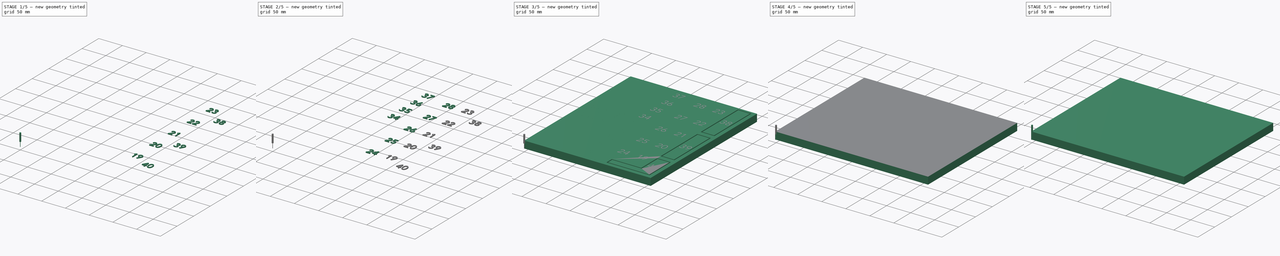
[diagram: build sequence overview — one tinted view per stage of 5, left to right]
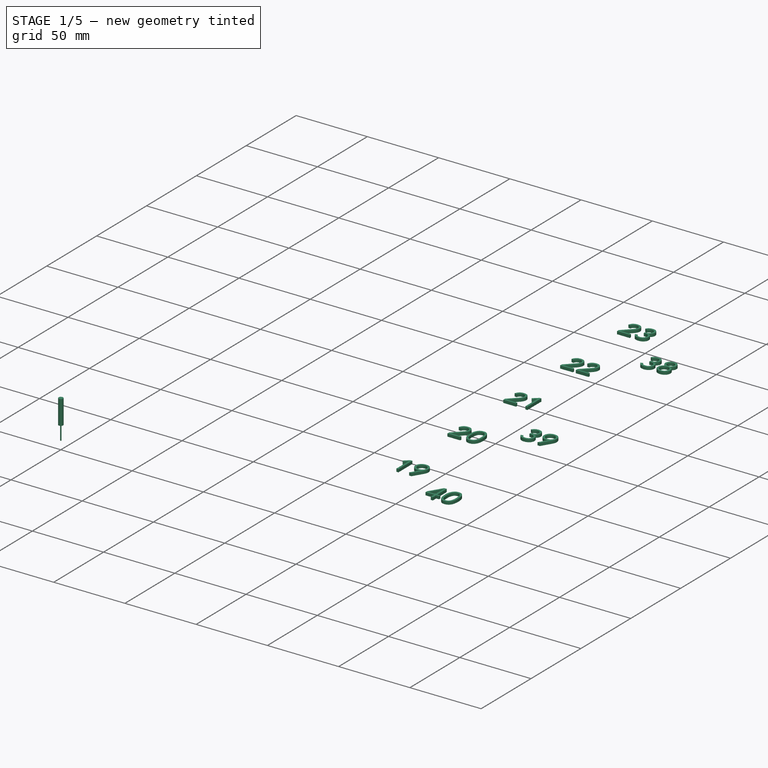
[diagram: stage 1 of 5 — iso view after this stage's code; geometry added in this stage tinted green]
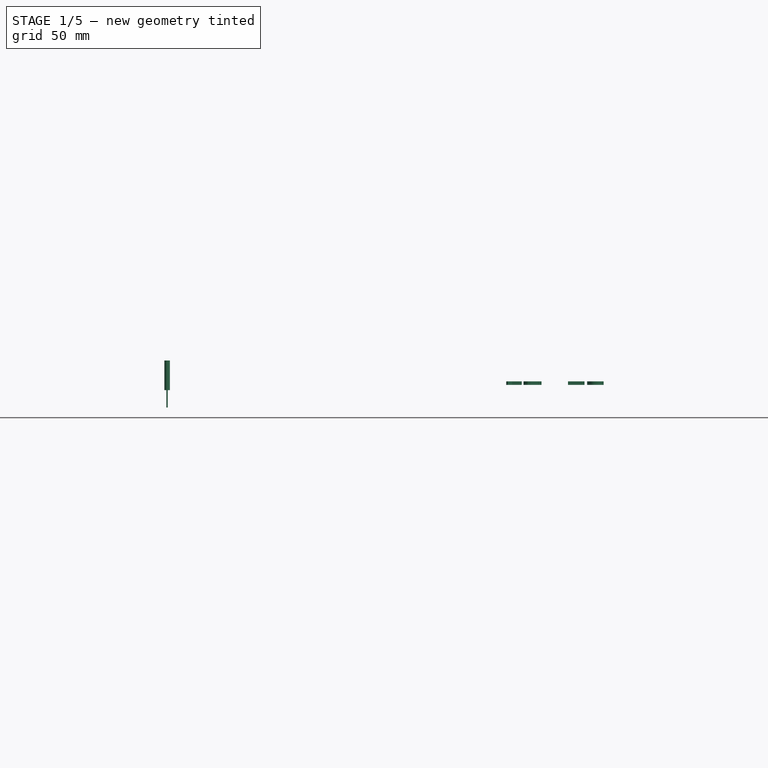
[diagram: stage 1 of 5 — front view after this stage's code; geometry added in this stage tinted green]
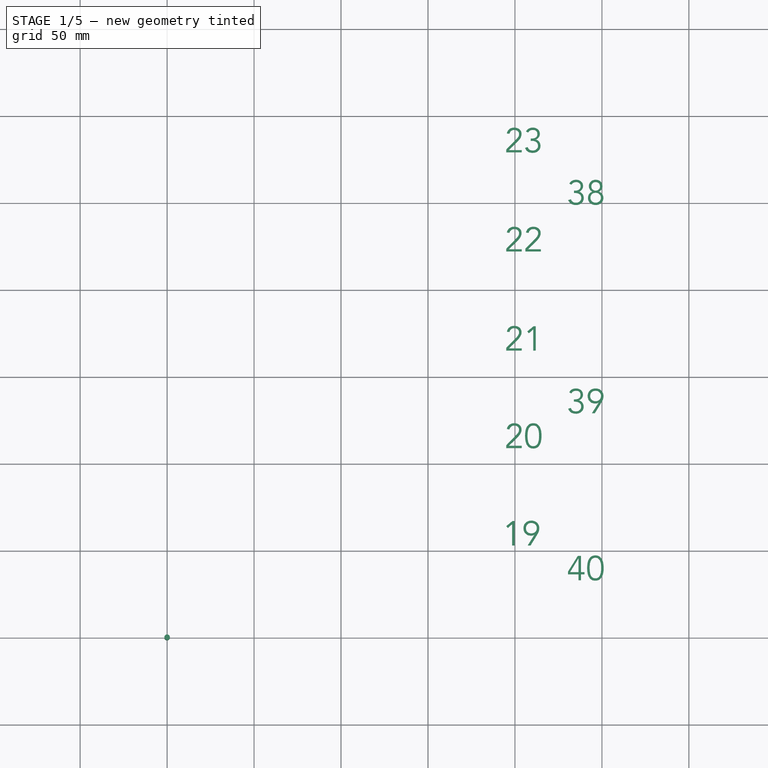
[diagram: stage 1 of 5 — top view after this stage's code; geometry added in this stage tinted green]
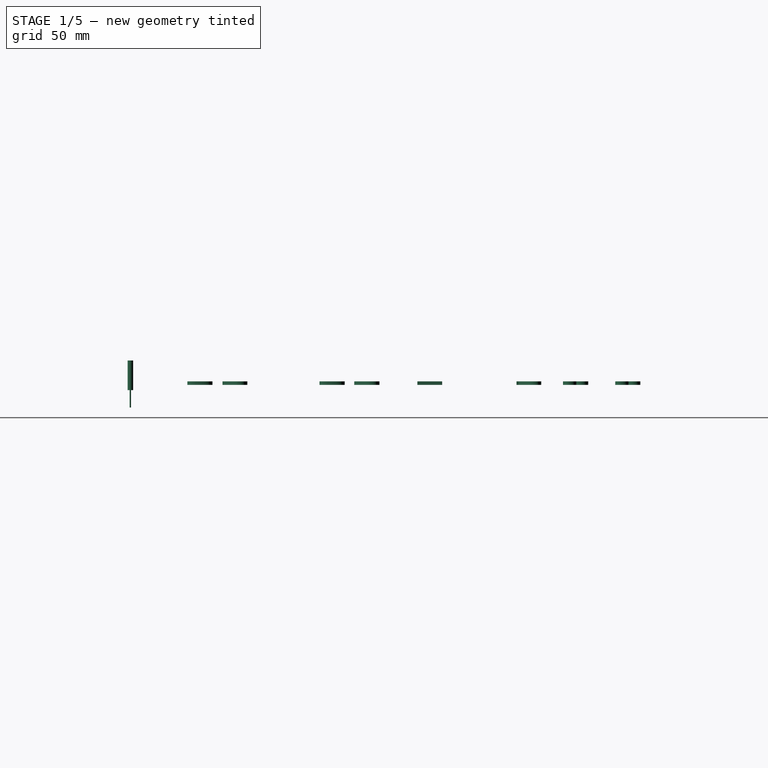
[diagram: stage 1 of 5 — right view after this stage's code; geometry added in this stage tinted green]
FCSTD DOCUMENT  (FreeCAD 0.22R36958 (Git))
Label: juell_bottom_w_title
License: All rights reserved
LicenseURL: http://en.wikipedia.org/wiki/All_rights_reserved
objects: Part::Part2DObjectPython×24, Part::Extrusion×24, Part::FeaturePython×14, Path::FeaturePython×14, Sketcher::SketchObject×4, PartDesign::Pocket×3, App::DocumentObjectGroup×3, PartDesign::LinearPattern×2, Spreadsheet::Sheet×1, PartDesign::Pad×1, PartDesign::Body×1, Part::MultiFuse×1, Part::Cut×1, App::FeaturePython×1, App::MeasureDistance×1
note: 80 computed .brp shape members not serialized (recipe doc carries the construction recipe); baked Part::Feature solids carry a one-line shape summary decoded from their .brp

FEATURE [Part::Extrusion] Extrude016
  Base = -> ShapeString016
  Dir = (0,0,1)
  DirMode = 2
  FaceMakerClass = Part::FaceMakerBullseye
  LengthFwd = 2
  LengthRev = 0
  Reversed = true
  Solid = true
  Symmetric = false
FEATURE [Part::Extrusion] Extrude017
  Base = -> ShapeString017
  Dir = (0,0,1)
  DirMode = 2
  FaceMakerClass = Part::FaceMakerBullseye
  LengthFwd = 2
  LengthRev = 0
  Reversed = true
  Solid = true
  Symmetric = false
FEATURE [Part::Extrusion] Extrude018
  Base = -> ShapeString018
  Dir = (0,0,1)
  DirMode = 2
  FaceMakerClass = Part::FaceMakerBullseye
  LengthFwd = 2
  LengthRev = 0
  Reversed = true
  Solid = true
  Symmetric = false
FEATURE [Part::Extrusion] Extrude019
  Base = -> ShapeString019
  Dir = (0,0,1)
  DirMode = 2
  FaceMakerClass = Part::FaceMakerBullseye
  LengthFwd = 2
  LengthRev = 0
  Reversed = true
  Solid = true
  Symmetric = false
FEATURE [Part::Extrusion] Extrude020
  Base = -> ShapeString020
  Dir = (0,0,1)
  DirMode = 2
  FaceMakerClass = Part::FaceMakerBullseye
  LengthFwd = 2
  LengthRev = 0
  Reversed = true
  Solid = true
  Symmetric = false
FEATURE [Part::Extrusion] Extrude021
  Base = -> ShapeString021
  Dir = (0,0,1)
  DirMode = 2
  FaceMakerClass = Part::FaceMakerBullseye
  LengthFwd = 2
  LengthRev = 0
  Reversed = true
  Solid = true
  Symmetric = false
FEATURE [Part::Extrusion] Extrude022
  Base = -> ShapeString022
  Dir = (0,0,1)
  DirMode = 2
  FaceMakerClass = Part::FaceMakerBullseye
  LengthFwd = 2
  LengthRev = 0
  Reversed = true
  Solid = true
  Symmetric = false
FEATURE [Part::Extrusion] Extrude023
  Base = -> ShapeString023
  Dir = (0,0,1)
  DirMode = 2
  FaceMakerClass = Part::FaceMakerBullseye
  LengthFwd = 2
  LengthRev = 0
  Reversed = true
  Solid = true
  Symmetric = false
FEATURE [App::DocumentObjectGroup] Model
  Group = -> [Clone]
FEATURE [Part::FeaturePython] ToolBit  label="0.8mm_Endmill004"  # Path/CAM toolbit (typed FeaturePython)
  BitPropertyNames = Chipload | CuttingEdgeHeight | Diameter | Flutes | Length | Material | ShankDiameter | SpindleDirection
  BitShape = /private/var/folders/4z/cpn_82wx3qz0m4lfqxz9fps80000gn/T/AppTranslocation/C237E315-4526-4725-9325-06C9AD00EF50/d/FreeCAD.app/Contents/Resources/Mod/CAM/Tools/Shape/endmill.fcstd
  Chipload = 0
  CuttingEdgeHeight = 10
  Diameter = 0.8
  Flutes = 0
  Length = 27
  Material = 0
  ShankDiameter = 3.17
  ShapeName = endmill
  SpindleDirection = 0
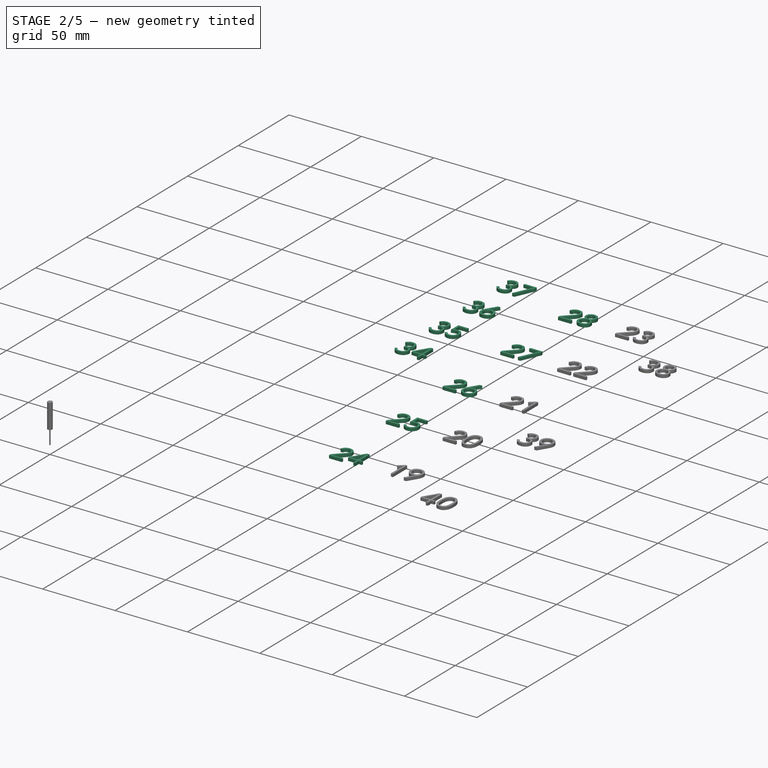
[diagram: stage 2 of 5 — iso view after this stage's code; geometry added in this stage tinted green]
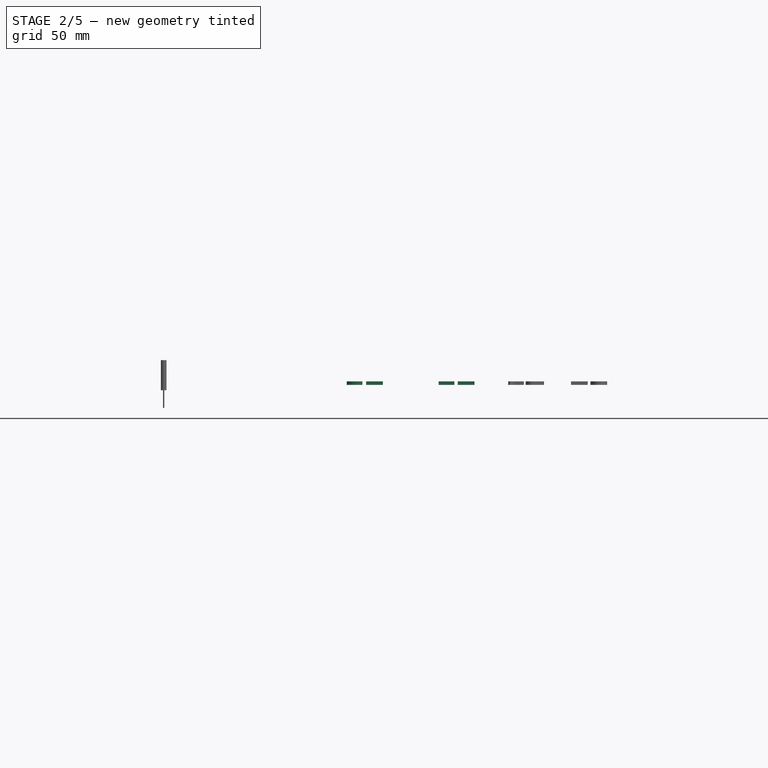
[diagram: stage 2 of 5 — front view after this stage's code; geometry added in this stage tinted green]
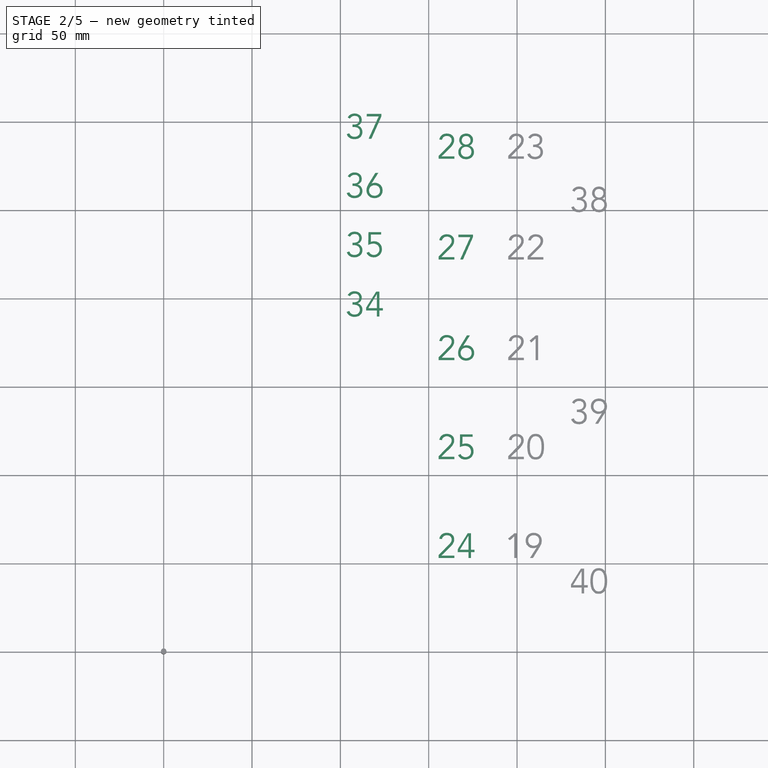
[diagram: stage 2 of 5 — top view after this stage's code; geometry added in this stage tinted green]
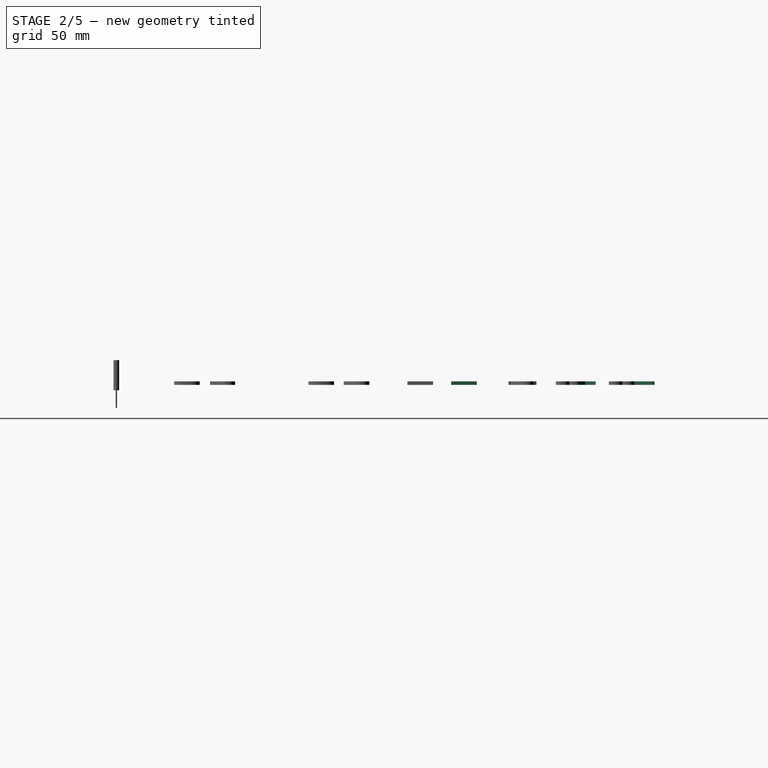
[diagram: stage 2 of 5 — right view after this stage's code; geometry added in this stage tinted green]
FEATURE [Part::Extrusion] Extrude007
  Base = -> ShapeString007
  Dir = (0,0,1)
  DirMode = 2
  FaceMakerClass = Part::FaceMakerBullseye
  LengthFwd = 2
  LengthRev = 0
  Reversed = true
  Solid = true
  Symmetric = false
FEATURE [Part::Extrusion] Extrude008
  Base = -> ShapeString008
  Dir = (0,0,1)
  DirMode = 2
  FaceMakerClass = Part::FaceMakerBullseye
  LengthFwd = 2
  LengthRev = 0
  Reversed = true
  Solid = true
  Symmetric = false
FEATURE [Part::Extrusion] Extrude009
  Base = -> ShapeString009
  Dir = (0,0,1)
  DirMode = 2
  FaceMakerClass = Part::FaceMakerBullseye
  LengthFwd = 2
  LengthRev = 0
  Reversed = true
  Solid = true
  Symmetric = false
FEATURE [Part::Extrusion] Extrude010
  Base = -> ShapeString010
  Dir = (0,0,1)
  DirMode = 2
  FaceMakerClass = Part::FaceMakerBullseye
  LengthFwd = 2
  LengthRev = 0
  Reversed = true
  Solid = true
  Symmetric = false
FEATURE [Part::Extrusion] Extrude011
  Base = -> ShapeString011
  Dir = (0,0,1)
  DirMode = 2
  FaceMakerClass = Part::FaceMakerBullseye
  LengthFwd = 2
  LengthRev = 0
  Reversed = true
  Solid = true
  Symmetric = false
FEATURE [Part::Extrusion] Extrude012
  Base = -> ShapeString012
  Dir = (0,0,1)
  DirMode = 2
  FaceMakerClass = Part::FaceMakerBullseye
  LengthFwd = 2
  LengthRev = 0
  Reversed = true
  Solid = true
  Symmetric = false
FEATURE [Part::Extrusion] Extrude013
  Base = -> ShapeString013
  Dir = (0,0,1)
  DirMode = 2
  FaceMakerClass = Part::FaceMakerBullseye
  LengthFwd = 2
  LengthRev = 0
  Reversed = true
  Solid = true
  Symmetric = false
FEATURE [Part::Extrusion] Extrude014
  Base = -> ShapeString014
  Dir = (0,0,1)
  DirMode = 2
  FaceMakerClass = Part::FaceMakerBullseye
  LengthFwd = 2
  LengthRev = 0
  Reversed = true
  Solid = true
  Symmetric = false
FEATURE [Part::Extrusion] Extrude015
  Base = -> ShapeString015
  Dir = (0,0,1)
  DirMode = 2
  FaceMakerClass = Part::FaceMakerBullseye
  LengthFwd = 2
  LengthRev = 0
  Reversed = true
  Solid = true
  Symmetric = false
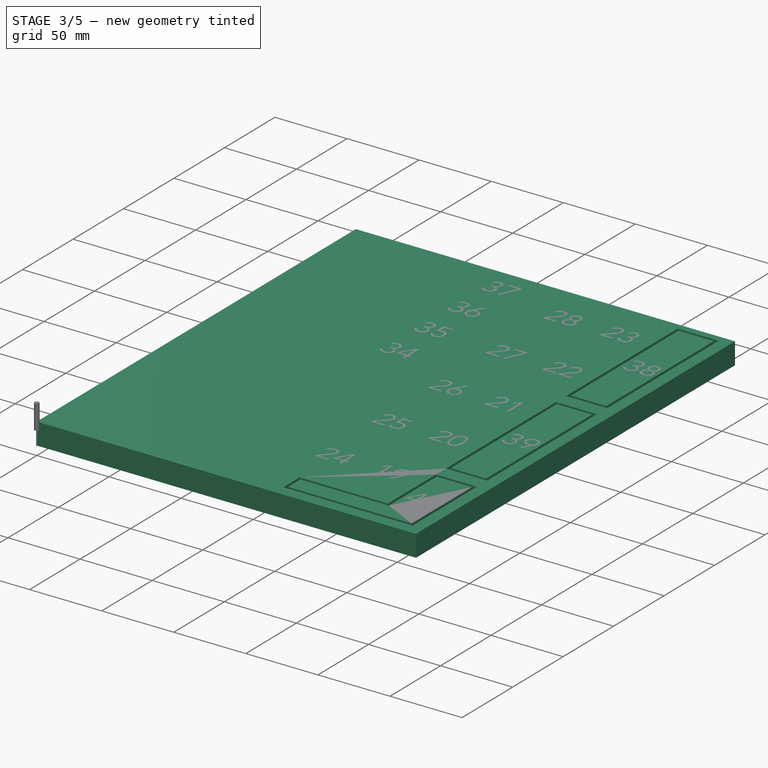
[diagram: stage 3 of 5 — iso view after this stage's code; geometry added in this stage tinted green]
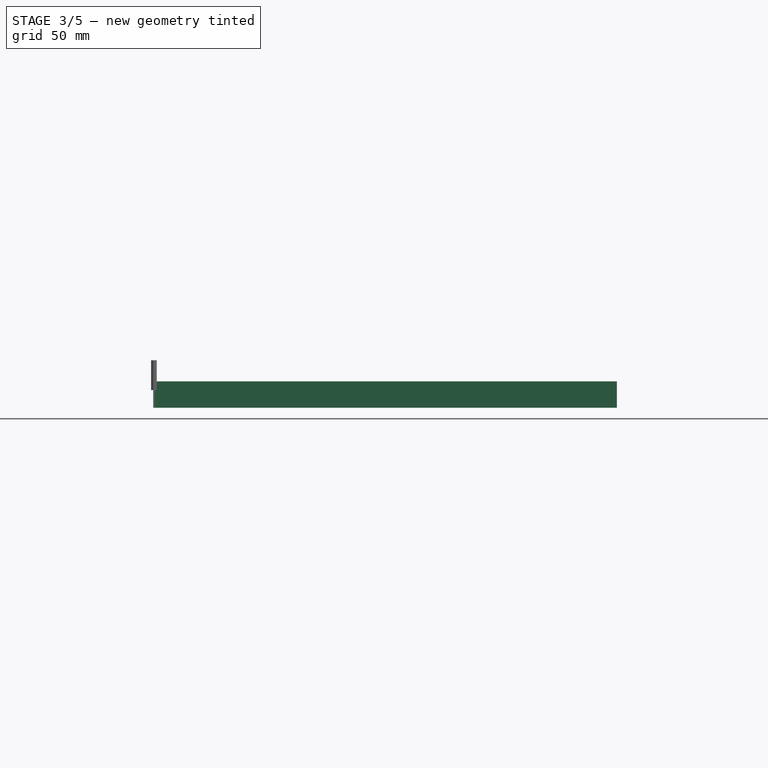
[diagram: stage 3 of 5 — front view after this stage's code; geometry added in this stage tinted green]
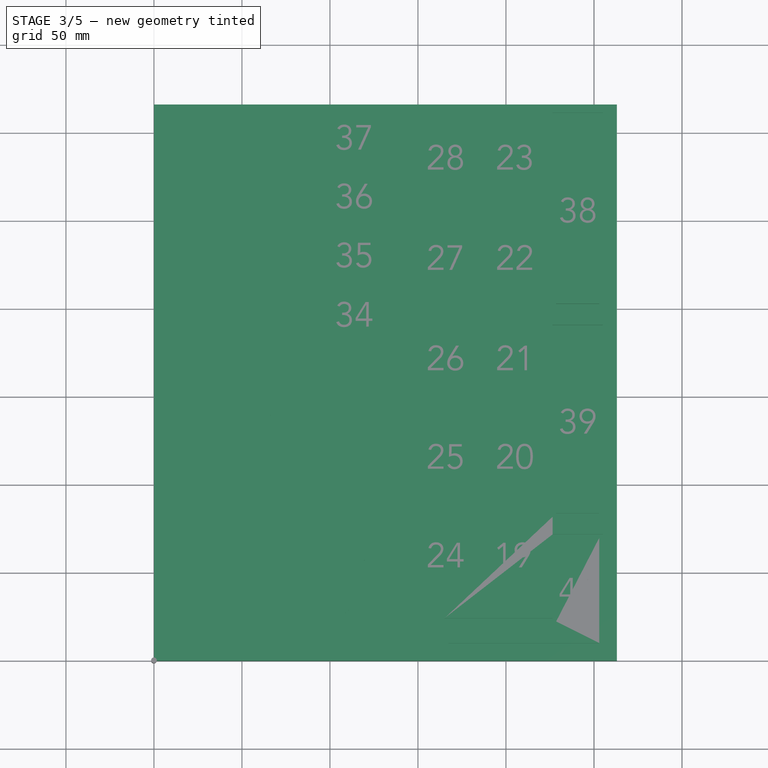
[diagram: stage 3 of 5 — top view after this stage's code; geometry added in this stage tinted green]
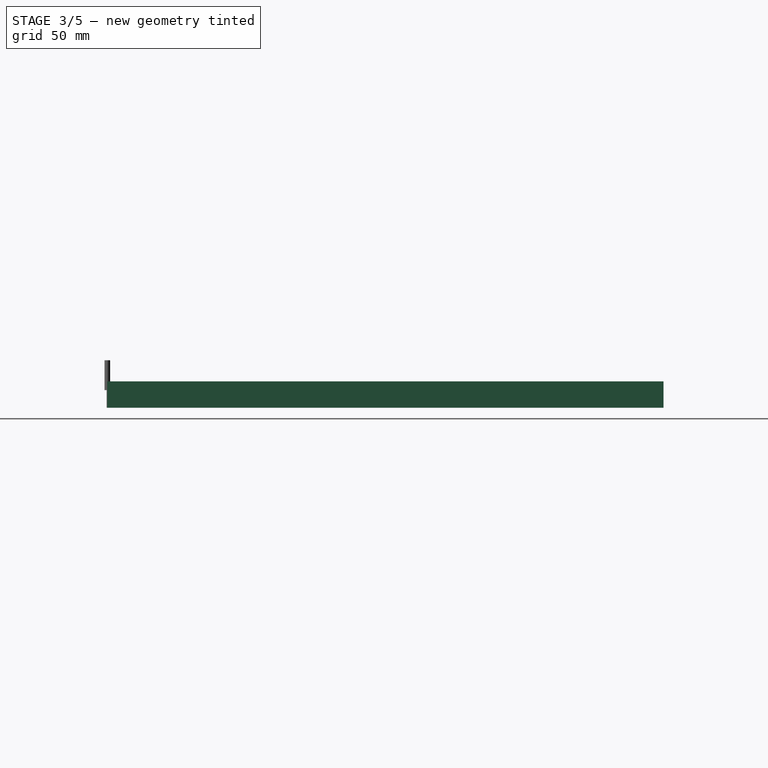
[diagram: stage 3 of 5 — right view after this stage's code; geometry added in this stage tinted green]
FEATURE [Spreadsheet::Sheet] Spreadsheet  label="vars"
  cells = A1='placard; E1='X; F1='Y; A2='width; B2(width)=263; C2=263; A3='length; B3(length)==C3 * 2; C3=158; A4='height; B4(height)=15; A5='border_size; B5(border_size)=10; A6='cut_height; B6(cut_height)=5; A7='plot_length_wide; B7(plot_length_wide)=24.5; C7=55; A8='plot_width_wide; B8(plot_width_wide)=47.5; C8==20 * 1.5502; A9='plot_length_narrow; B9(plot_length_narrow)=30; C9==200 * 16; A10='plot_width_narrow; B10(plot_width_narrow)=106.5; A11='plot_border; B11(plot_border)=2; A12='plot_distance; B12(plot_distance)=10; A13='plot_distance_short; B13(plot_distance_short)=9; A14='font_size; B14(font_size)=20; A15='font_height; B15(font_height)=2; A16='plot_border_left; B16(plot_border_left)=50
FEATURE [Sketcher::SketchObject] Sketch
  FullyConstrained = true
  MapMode = 5
  expr: Constraints[10] = <<vars>>.length
  expr: Constraints[9] = <<vars>>.width
  sketch-geometry (4):
    g0: LineSegment StartX=0 StartY=0 StartZ=0 EndX=263 EndY=0 EndZ=0
    g1: LineSegment StartX=263 StartY=0 StartZ=0 EndX=263 EndY=316 EndZ=0
    g2: LineSegment StartX=263 StartY=316 StartZ=0 EndX=0 EndY=316 EndZ=0
    g3: LineSegment StartX=0 StartY=316 StartZ=0 EndX=0 EndY=0 EndZ=0
  constraints (11):
    c: Coincident(g0,g1)
    c: Coincident(g1,g2)
    c: Coincident(g2,g3)
    c: Coincident(g3,g0)
    c: Horizontal(g0)
    c: Horizontal(g2)
    c: Vertical(g1)
    c: Vertical(g3)
    c: Coincident(g0,g-1)
    c: DistanceX(g2,g2) = 263
    c: DistanceY(g3,g3) = 316
FEATURE [PartDesign::Pad] Pad
  Direction = (0,0,1)
  Length = 15
  Length2 = 10
  Profile = -> Sketch
  ReferenceAxis = -> Sketch [N_Axis]
  Suppressed = false
  Type = 0
  expr: Length = <<vars>>.height
FEATURE [Sketcher::SketchObject] Sketch001
  AttachmentSupport = -> [Pad]
  FullyConstrained = true
  MapMode = 5
  Placement = pos=(0,0,15) rot=(0,0,1;0rad)
  expr: Constraints[106] = <<vars>>.plot_length_wide
  expr: Constraints[108] = <<vars>>.plot_distance
  expr: Constraints[109] = <<vars>>.plot_distance
  expr: Constraints[10] = <<vars>>.length
  expr: Constraints[23] = <<vars>>.plot_length_wide
  expr: Constraints[24] = <<vars>>.plot_length_wide / 2
  expr: Constraints[25] = <<vars>>.plot_length_wide * 2.5
  expr: Constraints[26] = <<vars>>.plot_width_wide
  expr: Constraints[27] = <<vars>>.border_size
  expr: Constraints[28] = <<vars>>.border_size
  expr: Constraints[41] = <<vars>>.plot_border
  expr: Constraints[42] = <<vars>>.plot_border
  expr: Constraints[43] = <<vars>>.plot_border
  expr: Constraints[44] = <<vars>>.plot_border
  expr: Constraints[45] = <<vars>>.plot_border
  expr: Constraints[46] = <<vars>>.plot_border
  expr: Constraints[74] = <<vars>>.plot_border
  expr: Constraints[75] = <<vars>>.plot_length_wide
  expr: Constraints[76] = <<vars>>.plot_width_narrow
  expr: Constraints[9] = <<vars>>.width
  sketch-geometry (40):
    g0: LineSegment StartX=0 StartY=0 StartZ=0 EndX=263 EndY=0 EndZ=0
    g1: LineSegment StartX=263 StartY=0 StartZ=0 EndX=263 EndY=316 EndZ=0
    g2: LineSegment StartX=263 StartY=316 StartZ=0 EndX=0 EndY=316 EndZ=0
    g3: LineSegment StartX=0 StartY=316 StartZ=0 EndX=0 EndY=0 EndZ=0
    g4: LineSegment StartX=167.25 StartY=10 StartZ=0 EndX=253 EndY=10 EndZ=0
    g5: LineSegment StartX=253 StartY=10 StartZ=0 EndX=253 EndY=69.75 EndZ=0
    g6: LineSegment StartX=253 StartY=69.75 StartZ=0 EndX=228.5 EndY=69.75 EndZ=0
    g7: LineSegment StartX=228.5 StartY=69.75 StartZ=0 EndX=228.5 EndY=22.25 EndZ=0
    g8: LineSegment StartX=228.5 StartY=22.25 StartZ=0 EndX=167.25 EndY=22.25 EndZ=0
    g9: LineSegment StartX=167.25 StartY=22.25 StartZ=0 EndX=167.25 EndY=10 EndZ=0
    g10: LineSegment StartX=165.25 StartY=8 StartZ=0 EndX=255 EndY=8 EndZ=0
    g11: LineSegment StartX=255 StartY=8 StartZ=0 EndX=255 EndY=71.75 EndZ=0
    g12: LineSegment StartX=255 StartY=71.75 StartZ=0 EndX=226.5 EndY=71.75 EndZ=0
    g13: LineSegment StartX=226.5 StartY=71.75 StartZ=0 EndX=226.5 EndY=24.25 EndZ=0
    g14: LineSegment StartX=226.5 StartY=24.25 StartZ=0 EndX=165.25 EndY=24.25 EndZ=0
    g15: LineSegment StartX=165.25 StartY=24.25 StartZ=0 EndX=165.25 EndY=8 EndZ=0
    g16: LineSegment StartX=255 StartY=200.75 StartZ=0 EndX=255 EndY=311.25 EndZ=0
    g17: LineSegment StartX=255 StartY=311.25 StartZ=0 EndX=226.5 EndY=311.25 EndZ=0
    g18: LineSegment StartX=226.5 StartY=311.25 StartZ=0 EndX=226.5 EndY=200.75 EndZ=0
    g19: LineSegment StartX=226.5 StartY=200.75 StartZ=0 EndX=255 EndY=200.75 EndZ=0
    g20: LineSegment StartX=253 StartY=202.75 StartZ=0 EndX=253 EndY=309.25 EndZ=0
    g21: LineSegment StartX=253 StartY=309.25 StartZ=0 EndX=228.5 EndY=309.25 EndZ=0
    g22: LineSegment StartX=228.5 StartY=309.25 StartZ=0 EndX=228.5 EndY=202.75 EndZ=0
    g23: LineSegment StartX=228.5 StartY=202.75 StartZ=0 EndX=253 EndY=202.75 EndZ=0
    g24: LineSegment StartX=255 StartY=200.75 StartZ=0 EndX=253 EndY=202.75 EndZ=0
    g25: LineSegment StartX=255 StartY=311.25 StartZ=0 EndX=253 EndY=309.25 EndZ=0
    g26: LineSegment StartX=226.5 StartY=311.25 StartZ=0 EndX=228.5 EndY=309.25 EndZ=0
    g27: LineSegment StartX=226.5 StartY=200.75 StartZ=0 EndX=228.5 EndY=202.75 EndZ=0
    g28: LineSegment StartX=255 StartY=81.75 StartZ=0 EndX=255 EndY=190.75 EndZ=0
    g29: LineSegment StartX=255 StartY=190.75 StartZ=0 EndX=226.5 EndY=190.75 EndZ=0
    g30: LineSegment StartX=226.5 StartY=190.75 StartZ=0 EndX=226.5 EndY=81.75 EndZ=0
    g31: LineSegment StartX=226.5 StartY=81.75 StartZ=0 EndX=255 EndY=81.75 EndZ=0
    g32: LineSegment StartX=253 StartY=83.75 StartZ=0 EndX=253 EndY=188.75 EndZ=0
    g33: LineSegment StartX=253 StartY=188.75 StartZ=0 EndX=228.5 EndY=188.75 EndZ=0
    g34: LineSegment StartX=228.5 StartY=188.75 StartZ=0 EndX=228.5 EndY=83.75 EndZ=0
    g35: LineSegment StartX=228.5 StartY=83.75 StartZ=0 EndX=253 EndY=83.75 EndZ=0
    g36: LineSegment StartX=255 StartY=81.75 StartZ=0 EndX=253 EndY=83.75 EndZ=0
    g37: LineSegment StartX=255 StartY=190.75 StartZ=0 EndX=253 EndY=188.75 EndZ=0
    g38: LineSegment StartX=226.5 StartY=190.75 StartZ=0 EndX=228.5 EndY=188.75 EndZ=0
    g39: LineSegment StartX=226.5 StartY=81.75 StartZ=0 EndX=228.5 EndY=83.75 EndZ=0
  constraints (111):
    c: Coincident(g0,g1)
    c: Coincident(g1,g2)
    c: Coincident(g2,g3)
    c: Coincident(g3,g0)
    c: Horizontal(g0)
    c: Horizontal(g2)
    c: Vertical(g1)
    c: Vertical(g3)
    c: Coincident(g0,g-1)
    c: DistanceX(g2,g2) = 263
    c: DistanceY(g1,g1) = 316
    c: Horizontal(g4)
    c: Coincident(g4,g5)
    c: Vertical(g5)
    c: Coincident(g5,g6)
    c: Coincident(g6,g7)
    c: Vertical(g7)
    c: Coincident(g7,g8)
    c: Horizontal(g8)
    c: Coincident(g8,g9)
    c: Coincident(g9,g4)
    c: Angle(g4,g9) = 1.5708
    c: Angle(g6,g5) = 1.5708
    c: DistanceX(g6,g6) = 24.5
    c: DistanceY(g9,g9) = 12.25
    c: DistanceX(g8,g8) = 61.25
    c: DistanceY(g7,g7) = 47.5
    c: Distance(g4,g1) = 10
    c: Distance(g4,g0) = 10
    c: Horizontal(g10)
    c: Coincident(g10,g11)
    c: Vertical(g11)
    c: Coincident(g11,g12)
    c: Horizontal(g12)
    c: Coincident(g12,g13)
    c: Vertical(g13)
    c: Coincident(g13,g14)
    c: Horizontal(g14)
    c: Coincident(g14,g15)
    c: Coincident(g15,g10)
    c: Vertical(g15)
    c: Distance(g4,g15) = 2
    c: Distance(g4,g10) = 2
    c: Distance(g13,g8) = 2
    c: Distance(g13,g7) = 2
    c: Distance(g5,g12) = 2
    c: Distance(g5,g11) = 2
    c: Coincident(g16,g17)
    c: Coincident(g17,g18)
    c: Coincident(g18,g19)
    c: Coincident(g19,g16)
    c: Vertical(g16)
    c: Vertical(g18)
    c: Horizontal(g17)
    c: Horizontal(g19)
    c: Coincident(g20,g21)
    c: Coincident(g21,g22)
    c: Coincident(g22,g23)
    c: Coincident(g23,g20)
    c: Vertical(g20)
    c: Vertical(g22)
    c: Horizontal(g21)
    c: Horizontal(g23)
    c: Coincident(g24,g16)
    c: Coincident(g24,g20)
    c: Coincident(g25,g17)
    c: Coincident(g25,g21)
    c: Coincident(g26,g18)
    c: Coincident(g26,g22)
    c: Coincident(g27,g19)
    c: Coincident(g27,g23)
    c: Perpendicular(g24,g25)
    c: Perpendicular(g25,g26)
    c: Perpendicular(g26,g27)
    c: Distance(g21,g18) = 2
    c: DistanceX(g21,g21) = 24.5
    c: DistanceY(g22,g22) = 106.5
    c: Vertical(g20,g5)
    c: Coincident(g28,g29)
    c: Coincident(g29,g30)
    c: Coincident(g30,g31)
    c: Coincident(g31,g28)
    c: Vertical(g28)
    c: Vertical(g30)
    c: Horizontal(g29)
    c: Horizontal(g31)
    c: Coincident(g32,g33)
    c: Coincident(g33,g34)
    c: Coincident(g34,g35)
    c: Coincident(g35,g32)
    c: Vertical(g32)
    c: Vertical(g34)
    c: Horizontal(g33)
    c: Horizontal(g35)
    c: Coincident(g36,g28)
    c: Coincident(g36,g32)
    c: Coincident(g37,g29)
    c: Coincident(g37,g33)
    c: Coincident(g38,g30)
    c: Coincident(g38,g34)
    c: Coincident(g39,g31)
    c: Coincident(g39,g35)
    c: Perpendicular(g36,g37)
    c: Perpendicular(g37,g38)
    c: Perpendicular(g38,g39)
    c: Distance(g33,g30) = 2
    c: DistanceX(g33,g33) = 24.5
    c: DistanceY(g34,g34) = 105
    c: DistanceY(g11,g28) = 10
    c: DistanceY(g28,g16) = 10
    c: Vertical(g28,g11)
FEATURE [PartDesign::Pocket] Pocket
  BaseFeature = -> Pad
  Direction = (0,0,-1)
  Length = 5
  Length2 = 5
  Profile = -> Sketch001
  ReferenceAxis = -> Sketch001 [N_Axis]
  Suppressed = false
  Type = 0
FEATURE [PartDesign::Body] Body
  Group = -> [Sketch,Pad,Sketch001,Pocket,Sketch002,Pocket001,LinearPattern,Sketch003,Pocket002,LinearPattern001]
  Origin = -> Origin
  Tip = -> LinearPattern001
FEATURE [Part::Part2DObjectPython] ShapeString  label="PLOT29"  # Draft 2D object (typed FeaturePython)
  FontFile = /System/Library/Fonts/Avenir.ttc
  Fuse = false
  Justification = 6
  JustificationReference = 0
  KeepLeftMargin = false
  MakeFace = true
  ObliqueAngle = 0
  Placement = pos=(103.605,22.23,15.01) rot=(0,0,1;0rad)
  ScaleToSize = true
  Size = 14
  String = 29
  Tracking = 0
  expr: .Placement.Base.z = <<vars>>.height + 0.01
FEATURE [Part::Part2DObjectPython] ShapeString001  label="PLOT"  # Draft 2D object (typed FeaturePython)
  FontFile = /System/Library/Fonts/Avenir.ttc
  Fuse = false
  Justification = 4
  JustificationReference = 0
  KeepLeftMargin = false
  MakeFace = true
  ObliqueAngle = 0
  Placement = pos=(45,176,15.01) rot=(0,0,1;0rad)
  ScaleToSize = true
  Size = 20
  String = PLOT
  Tracking = 0
  expr: .Placement.Base.z = <<vars>>.height + 0.01
FEATURE [Part::Part2DObjectPython] ShapeString002  label="MAP"  # Draft 2D object (typed FeaturePython)
  FontFile = /System/Library/Fonts/Avenir.ttc
  Fuse = false
  Justification = 6
  JustificationReference = 0
  KeepLeftMargin = false
  MakeFace = true
  ObliqueAngle = 0
  Placement = pos=(15,130,15.01) rot=(0,0,1;0rad)
  ScaleToSize = true
  Size = 20
  String = MAP
  Tracking = 0
  expr: .Placement.Base.z = <<vars>>.height + 0.01
FEATURE [Part::Part2DObjectPython] ShapeString003  label="Plot30"  # Draft 2D object (typed FeaturePython)
  FontFile = /System/Library/Fonts/Avenir.ttc
  Fuse = false
  Justification = 6
  JustificationReference = 0
  KeepLeftMargin = false
  MakeFace = true
  ObliqueAngle = 0
  Placement = pos=(103.61,55.85,15.01) rot=(0,0,1;0rad)
  ScaleToSize = true
  Size = 14
  String = 30
  Tracking = 0
  expr: .Placement.Base.z = <<vars>>.height + 0.01
FEATURE [Part::Part2DObjectPython] ShapeString004  label="Plot31"  # Draft 2D object (typed FeaturePython)
  FontFile = /System/Library/Fonts/Avenir.ttc
  Fuse = false
  Justification = 6
  JustificationReference = 0
  KeepLeftMargin = false
  MakeFace = true
  ObliqueAngle = 0
  Placement = pos=(103.61,89.23,15.01) rot=(0,0,1;0rad)
  ScaleToSize = true
  Size = 14
  String = 31
  Tracking = 0
  expr: .Placement.Base.z = <<vars>>.height + 0.01
FEATURE [Part::Part2DObjectPython] ShapeString005  label="Plot32"  # Draft 2D object (typed FeaturePython)
  FontFile = /System/Library/Fonts/Avenir.ttc
  Fuse = false
  Justification = 6
  JustificationReference = 0
  KeepLeftMargin = false
  MakeFace = true
  ObliqueAngle = 0
  Placement = pos=(103.61,122.73,15.01) rot=(0,0,1;0rad)
  ScaleToSize = true
  Size = 14
  String = 32
  Tracking = 0
  expr: .Placement.Base.z = <<vars>>.height + 0.01
FEATURE [Part::Part2DObjectPython] ShapeString006  label="Plot33"  # Draft 2D object (typed FeaturePython)
  FontFile = /System/Library/Fonts/Avenir.ttc
  Fuse = false
  Justification = 6
  JustificationReference = 0
  KeepLeftMargin = false
  MakeFace = true
  ObliqueAngle = 0
  Placement = pos=(103.61,156.35,15.01) rot=(0,0,1;0rad)
  ScaleToSize = true
  Size = 14
  String = 33
  Tracking = 0
  expr: .Placement.Base.z = <<vars>>.height + 0.01
FEATURE [Part::Part2DObjectPython] ShapeString007  label="Plot34"  # Draft 2D object (typed FeaturePython)
  FontFile = /System/Library/Fonts/Avenir.ttc
  Fuse = false
  Justification = 6
  JustificationReference = 0
  KeepLeftMargin = false
  MakeFace = true
  ObliqueAngle = 0
  Placement = pos=(103.61,189.75,15.01) rot=(0,0,1;0rad)
  ScaleToSize = true
  Size = 14
  String = 34
  Tracking = 0
  expr: .Placement.Base.z = <<vars>>.height + 0.01
FEATURE [Part::Part2DObjectPython] ShapeString008  label="Plot35"  # Draft 2D object (typed FeaturePython)
  FontFile = /System/Library/Fonts/Avenir.ttc
  Fuse = false
  Justification = 6
  JustificationReference = 0
  KeepLeftMargin = false
  MakeFace = true
  ObliqueAngle = 0
  Placement = pos=(103.61,223.47,15.01) rot=(0,0,1;0rad)
  ScaleToSize = true
  Size = 14
  String = 35
  Tracking = 0
  expr: .Placement.Base.z = <<vars>>.height + 0.01
FEATURE [Part::Part2DObjectPython] ShapeString009  label="Plot36"  # Draft 2D object (typed FeaturePython)
  FontFile = /System/Library/Fonts/Avenir.ttc
  Fuse = false
  Justification = 6
  JustificationReference = 0
  KeepLeftMargin = false
  MakeFace = true
  ObliqueAngle = 0
  Placement = pos=(103.61,256.97,15.01) rot=(0,0,1;0rad)
  ScaleToSize = true
  Size = 14
  String = 36
  Tracking = 0
  expr: .Placement.Base.z = <<vars>>.height + 0.01
FEATURE [Part::Part2DObjectPython] ShapeString010  label="Plot37"  # Draft 2D object (typed FeaturePython)
  FontFile = /System/Library/Fonts/Avenir.ttc
  Fuse = false
  Justification = 6
  JustificationReference = 0
  KeepLeftMargin = false
  MakeFace = true
  ObliqueAngle = 0
  Placement = pos=(103.61,290.35,15.01) rot=(0,0,1;0rad)
  ScaleToSize = true
  Size = 14
  String = 37
  Tracking = 0
  expr: .Placement.Base.z = <<vars>>.height + 0.01
FEATURE [Part::Part2DObjectPython] ShapeString011  label="Plot28"  # Draft 2D object (typed FeaturePython)
  FontFile = /System/Library/Fonts/Avenir.ttc
  Fuse = false
  Justification = 6
  JustificationReference = 0
  KeepLeftMargin = false
  MakeFace = true
  ObliqueAngle = 0
  Placement = pos=(155.65,279,15.01) rot=(0,0,1;0rad)
  ScaleToSize = true
  Size = 14
  String = 28
  Tracking = 0
  expr: .Placement.Base.z = <<vars>>.height + 0.01
FEATURE [Part::Part2DObjectPython] ShapeString012  label="Plot27"  # Draft 2D object (typed FeaturePython)
  FontFile = /System/Library/Fonts/Avenir.ttc
  Fuse = false
  Justification = 6
  JustificationReference = 0
  KeepLeftMargin = false
  MakeFace = true
  ObliqueAngle = 0
  Placement = pos=(155.65,222,15.01) rot=(0,0,1;0rad)
  ScaleToSize = true
  Size = 14
  String = 27
  Tracking = 0
  expr: .Placement.Base.z = <<vars>>.height + 0.01
FEATURE [Part::Part2DObjectPython] ShapeString013  label="Plot26"  # Draft 2D object (typed FeaturePython)
  FontFile = /System/Library/Fonts/Avenir.ttc
  Fuse = false
  Justification = 6
  JustificationReference = 0
  KeepLeftMargin = false
  MakeFace = true
  ObliqueAngle = 0
  Placement = pos=(155.65,165,15.01) rot=(0,0,1;0rad)
  ScaleToSize = true
  Size = 14
  String = 26
  Tracking = 0
  expr: .Placement.Base.z = <<vars>>.height + 0.01
FEATURE [Part::Part2DObjectPython] ShapeString014  label="Plot25"  # Draft 2D object (typed FeaturePython)
  FontFile = /System/Library/Fonts/Avenir.ttc
  Fuse = false
  Justification = 6
  JustificationReference = 0
  KeepLeftMargin = false
  MakeFace = true
  ObliqueAngle = 0
  Placement = pos=(155.65,109,15.01) rot=(0,0,1;0rad)
  ScaleToSize = true
  Size = 14
  String = 25
  Tracking = 0
  expr: .Placement.Base.z = <<vars>>.height + 0.01
FEATURE [Part::Part2DObjectPython] ShapeString015  label="Plot24"  # Draft 2D object (typed FeaturePython)
  FontFile = /System/Library/Fonts/Avenir.ttc
  Fuse = false
  Justification = 6
  JustificationReference = 0
  KeepLeftMargin = false
  MakeFace = true
  ObliqueAngle = 0
  Placement = pos=(155.65,53,15.01) rot=(0,0,1;0rad)
  ScaleToSize = true
  Size = 14
  String = 24
  Tracking = 0
  expr: .Placement.Base.z = <<vars>>.height + 0.01
FEATURE [Part::Part2DObjectPython] ShapeString016  label="Plot19"  # Draft 2D object (typed FeaturePython)
  FontFile = /System/Library/Fonts/Avenir.ttc
  Fuse = false
  Justification = 6
  JustificationReference = 0
  KeepLeftMargin = false
  MakeFace = true
  ObliqueAngle = 0
  Placement = pos=(195,53,15.01) rot=(0,0,1;0rad)
  ScaleToSize = true
  Size = 14
  String = 19
  Tracking = 0
  expr: .Placement.Base.z = <<vars>>.height + 0.01
FEATURE [Part::Part2DObjectPython] ShapeString017  label="Plot20"  # Draft 2D object (typed FeaturePython)
  FontFile = /System/Library/Fonts/Avenir.ttc
  Fuse = false
  Justification = 6
  JustificationReference = 0
  KeepLeftMargin = false
  MakeFace = true
  ObliqueAngle = 0
  Placement = pos=(195,109,15.01) rot=(0,0,1;0rad)
  ScaleToSize = true
  Size = 14
  String = 20
  Tracking = 0
  expr: .Placement.Base.z = <<vars>>.height + 0.01
FEATURE [Part::Part2DObjectPython] ShapeString018  label="Plot21"  # Draft 2D object (typed FeaturePython)
  FontFile = /System/Library/Fonts/Avenir.ttc
  Fuse = false
  Justification = 6
  JustificationReference = 0
  KeepLeftMargin = false
  MakeFace = true
  ObliqueAngle = 0
  Placement = pos=(195,165,15.01) rot=(0,0,1;0rad)
  ScaleToSize = true
  Size = 14
  String = 21
  Tracking = 0
  expr: .Placement.Base.z = <<vars>>.height + 0.01
FEATURE [Part::Part2DObjectPython] ShapeString019  label="Plot22"  # Draft 2D object (typed FeaturePython)
  FontFile = /System/Library/Fonts/Avenir.ttc
  Fuse = false
  Justification = 6
  JustificationReference = 0
  KeepLeftMargin = false
  MakeFace = true
  ObliqueAngle = 0
  Placement = pos=(195,222,15.01) rot=(0,0,1;0rad)
  ScaleToSize = true
  Size = 14
  String = 22
  Tracking = 0
  expr: .Placement.Base.z = <<vars>>.height + 0.01
FEATURE [Part::Part2DObjectPython] ShapeString020  label="Plot23"  # Draft 2D object (typed FeaturePython)
  FontFile = /System/Library/Fonts/Avenir.ttc
  Fuse = false
  Justification = 6
  JustificationReference = 0
  KeepLeftMargin = false
  MakeFace = true
  ObliqueAngle = 0
  Placement = pos=(195,279,15.01) rot=(0,0,1;0rad)
  ScaleToSize = true
  Size = 14
  String = 23
  Tracking = 0
  expr: .Placement.Base.z = <<vars>>.height + 0.01
FEATURE [Part::Part2DObjectPython] ShapeString021  label="Plot38"  # Draft 2D object (typed FeaturePython)
  FontFile = /System/Library/Fonts/Avenir.ttc
  Fuse = false
  Justification = 4
  JustificationReference = 0
  KeepLeftMargin = false
  MakeFace = true
  ObliqueAngle = 0
  Placement = pos=(240.75,256,15.01) rot=(0,0,1;0rad)
  ScaleToSize = true
  Size = 14
  String = 38
  Tracking = 0
  expr: .Placement.Base.z = <<vars>>.height + 0.01
FEATURE [Part::Part2DObjectPython] ShapeString022  label="Plot39"  # Draft 2D object (typed FeaturePython)
  FontFile = /System/Library/Fonts/Avenir.ttc
  Fuse = false
  Justification = 4
  JustificationReference = 0
  KeepLeftMargin = false
  MakeFace = true
  ObliqueAngle = 0
  Placement = pos=(240.75,136,15.01) rot=(0,0,1;0rad)
  ScaleToSize = true
  Size = 14
  String = 39
  Tracking = 0
  expr: .Placement.Base.z = <<vars>>.height + 0.01
FEATURE [Part::Part2DObjectPython] ShapeString023  label="Plot40"  # Draft 2D object (typed FeaturePython)
  FontFile = /System/Library/Fonts/Avenir.ttc
  Fuse = false
  Justification = 4
  JustificationReference = 0
  KeepLeftMargin = false
  MakeFace = true
  ObliqueAngle = 0
  Placement = pos=(240.75,40,15.01) rot=(0,0,1;0rad)
  ScaleToSize = true
  Size = 14
  String = 40
  Tracking = 0
  expr: .Placement.Base.z = <<vars>>.height + 0.01
FEATURE [Part::Extrusion] Extrude
  Base = -> ShapeString
  Dir = (0,0,1)
  DirMode = 2
  FaceMakerClass = Part::FaceMakerBullseye
  LengthFwd = 2
  LengthRev = 0
  Reversed = true
  Solid = true
  Symmetric = false
FEATURE [Part::Extrusion] Extrude001
  Base = -> ShapeString001
  Dir = (0,0,1)
  DirMode = 2
  FaceMakerClass = Part::FaceMakerBullseye
  LengthFwd = 2
  LengthRev = 0
  Reversed = true
  Solid = true
  Symmetric = false
FEATURE [Part::Extrusion] Extrude002
  Base = -> ShapeString002
  Dir = (0,0,1)
  DirMode = 2
  FaceMakerClass = Part::FaceMakerBullseye
  LengthFwd = 2
  LengthRev = 0
  Reversed = true
  Solid = true
  Symmetric = false
FEATURE [Part::Extrusion] Extrude003
  Base = -> ShapeString003
  Dir = (0,0,1)
  DirMode = 2
  FaceMakerClass = Part::FaceMakerBullseye
  LengthFwd = 2
  LengthRev = 0
  Reversed = true
  Solid = true
  Symmetric = false
FEATURE [Part::Extrusion] Extrude004
  Base = -> ShapeString004
  Dir = (0,0,1)
  DirMode = 2
  FaceMakerClass = Part::FaceMakerBullseye
  LengthFwd = 2
  LengthRev = 0
  Reversed = true
  Solid = true
  Symmetric = false
FEATURE [Part::Extrusion] Extrude005
  Base = -> ShapeString005
  Dir = (0,0,1)
  DirMode = 2
  FaceMakerClass = Part::FaceMakerBullseye
  LengthFwd = 2
  LengthRev = 0
  Reversed = true
  Solid = true
  Symmetric = false
FEATURE [Part::Extrusion] Extrude006
  Base = -> ShapeString006
  Dir = (0,0,1)
  DirMode = 2
  FaceMakerClass = Part::FaceMakerBullseye
  LengthFwd = 2
  LengthRev = 0
  Reversed = true
  Solid = true
  Symmetric = false
FEATURE [Part::MultiFuse] Fusion
  Shapes = -> [Extrude,Extrude001,Extrude002,Extrude003,Extrude004,Extrude005,Extrude006,Extrude007,Extrude008,Extrude009,Extrude010,Extrude011,Extrude012,Extrude013,Extrude014,Extrude015,Extrude016,Extrude017,Extrude018,Extrude019,Extrude020,Extrude021,Extrude022,Extrude023]
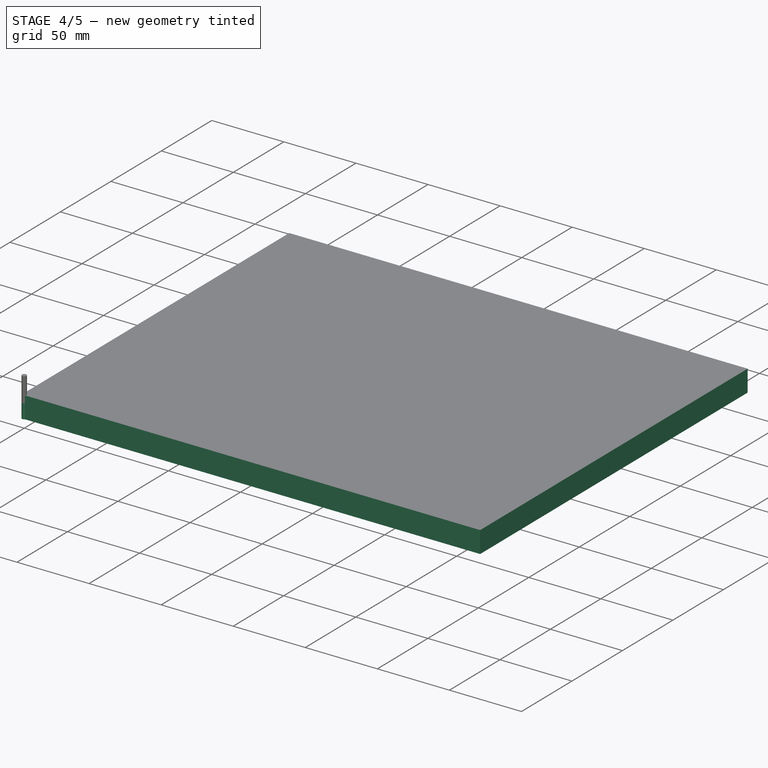
[diagram: stage 4 of 5 — iso view after this stage's code; geometry added in this stage tinted green]
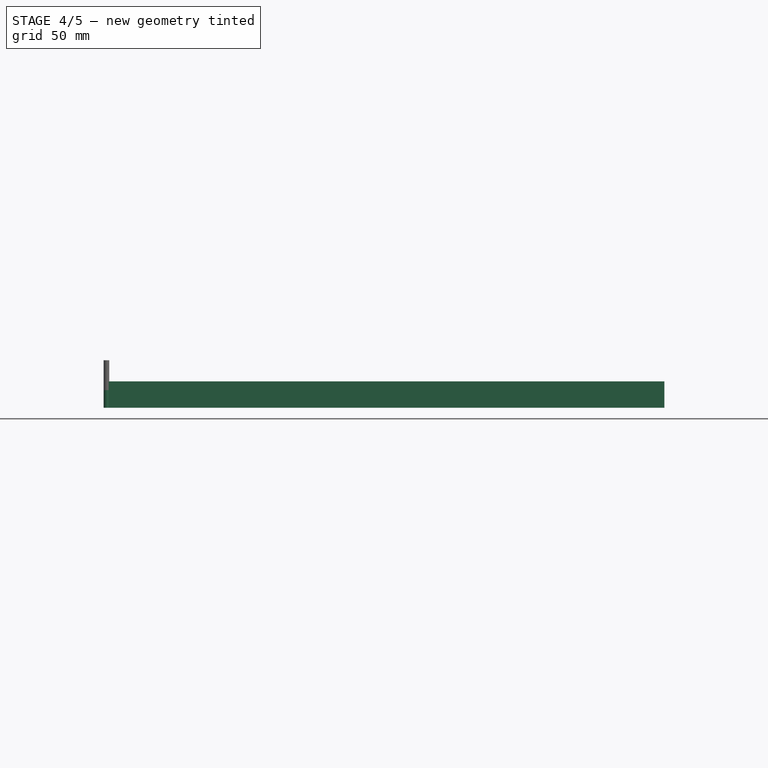
[diagram: stage 4 of 5 — front view after this stage's code; geometry added in this stage tinted green]
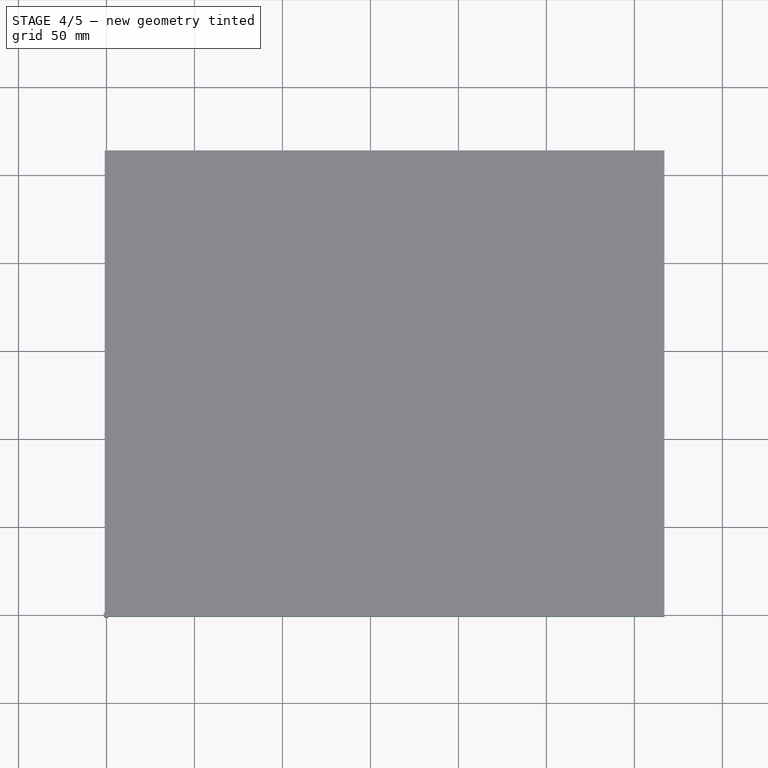
[diagram: stage 4 of 5 — top view after this stage's code; geometry added in this stage tinted green]
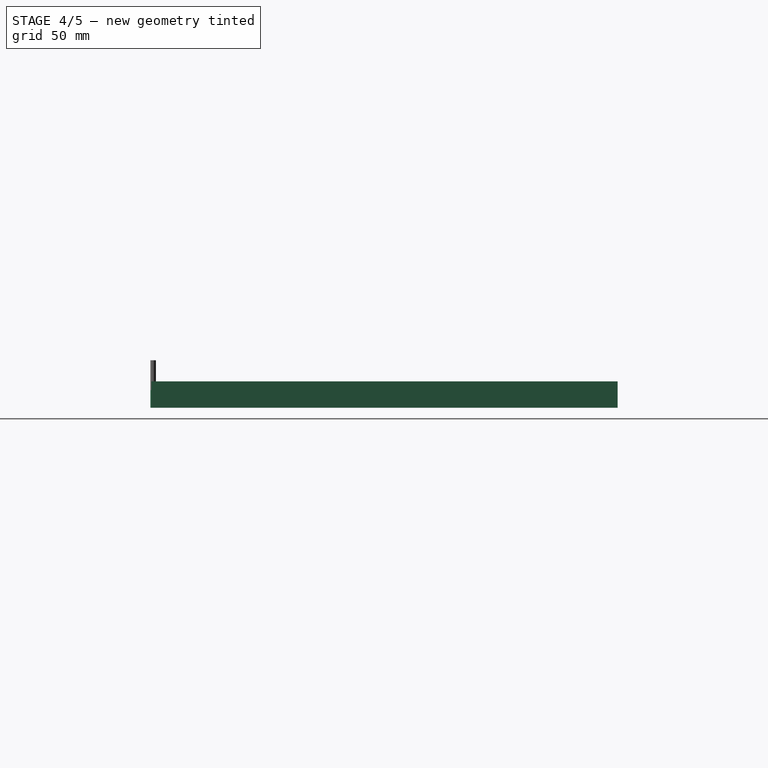
[diagram: stage 4 of 5 — right view after this stage's code; geometry added in this stage tinted green]
FEATURE [Sketcher::SketchObject] Sketch002
  AttachmentSupport = -> [Pocket]
  FullyConstrained = true
  MapMode = 5
  Placement = pos=(0,0,15) rot=(0,0,1;0rad)
  expr: Constraints[10] = <<vars>>.length
  expr: Constraints[38] = <<vars>>.plot_width_wide
  expr: Constraints[39] = <<vars>>.plot_length_wide
  expr: Constraints[40] = <<vars>>.plot_border
  expr: Constraints[41] = <<vars>>.border_size + <<vars>>.plot_length_wide + <<vars>>.plot_distance
  expr: Constraints[42] = <<vars>>.border_size + <<vars>>.plot_length_narrow / 2 + <<vars>>.plot_distance_short
  expr: Constraints[70] = <<vars>>.plot_length_wide
  expr: Constraints[71] = <<vars>>.plot_width_wide
  expr: Constraints[72] = <<vars>>.plot_border
  expr: Constraints[74] = <<vars>>.plot_distance
  expr: Constraints[9] = <<vars>>.width
  sketch-geometry (28):
    g0: LineSegment StartX=0 StartY=0 StartZ=0 EndX=263 EndY=0 EndZ=0
    g1: LineSegment StartX=263 StartY=0 StartZ=0 EndX=263 EndY=316 EndZ=0
    g2: LineSegment StartX=263 StartY=316 StartZ=0 EndX=0 EndY=316 EndZ=0
    g3: LineSegment StartX=0 StartY=316 StartZ=0 EndX=0 EndY=0 EndZ=0
    g4: LineSegment StartX=190 StartY=34 StartZ=0 EndX=218.5 EndY=34 EndZ=0
    g5: LineSegment StartX=218.5 StartY=34 StartZ=0 EndX=218.5 EndY=85.5 EndZ=0
    g6: LineSegment StartX=218.5 StartY=85.5 StartZ=0 EndX=190 EndY=85.5 EndZ=0
    g7: LineSegment StartX=190 StartY=85.5 StartZ=0 EndX=190 EndY=34 EndZ=0
    g8: LineSegment StartX=192 StartY=36 StartZ=0 EndX=216.5 EndY=36 EndZ=0
    g9: LineSegment StartX=216.5 StartY=36 StartZ=0 EndX=216.5 EndY=83.5 EndZ=0
    g10: LineSegment StartX=216.5 StartY=83.5 StartZ=0 EndX=192 EndY=83.5 EndZ=0
    g11: LineSegment StartX=192 StartY=83.5 StartZ=0 EndX=192 EndY=36 EndZ=0
    g12: LineSegment StartX=190 StartY=34 StartZ=0 EndX=192 EndY=36 EndZ=0
    g13: LineSegment StartX=218.5 StartY=34 StartZ=0 EndX=216.5 EndY=36 EndZ=0
    g14: LineSegment StartX=218.5 StartY=85.5 StartZ=0 EndX=216.5 EndY=83.5 EndZ=0
    g15: LineSegment StartX=190 StartY=85.5 StartZ=0 EndX=192 EndY=83.5 EndZ=0
    g16: LineSegment StartX=180 StartY=34 StartZ=0 EndX=180 EndY=85.5 EndZ=0
    g17: LineSegment StartX=180 StartY=85.5 StartZ=0 EndX=151.5 EndY=85.5 EndZ=0
    g18: LineSegment StartX=151.5 StartY=85.5 StartZ=0 EndX=151.5 EndY=34 EndZ=0
    g19: LineSegment StartX=151.5 StartY=34 StartZ=0 EndX=180 EndY=34 EndZ=0
    g20: LineSegment StartX=178 StartY=36 StartZ=0 EndX=178 EndY=83.5 EndZ=0
    g21: LineSegment StartX=178 StartY=83.5 StartZ=0 EndX=153.5 EndY=83.5 EndZ=0
    g22: LineSegment StartX=153.5 StartY=83.5 StartZ=0 EndX=153.5 EndY=36 EndZ=0
    g23: LineSegment StartX=153.5 StartY=36 StartZ=0 EndX=178 EndY=36 EndZ=0
    g24: LineSegment StartX=180 StartY=34 StartZ=0 EndX=178 EndY=36 EndZ=0
    g25: LineSegment StartX=180 StartY=85.5 StartZ=0 EndX=178 EndY=83.5 EndZ=0
    g26: LineSegment StartX=151.5 StartY=85.5 StartZ=0 EndX=153.5 EndY=83.5 EndZ=0
    g27: LineSegment StartX=151.5 StartY=34 StartZ=0 EndX=153.5 EndY=36 EndZ=0
  constraints (75):
    c: Coincident(g0,g1)
    c: Coincident(g1,g2)
    c: Coincident(g2,g3)
    c: Coincident(g3,g0)
    c: Horizontal(g0)
    c: Horizontal(g2)
    c: Vertical(g1)
    c: Vertical(g3)
    c: Coincident(g0,g-1)
    c: DistanceX(g2,g2) = 263
    c: DistanceY(g1,g1) = 316
    c: Coincident(g4,g5)
    c: Coincident(g5,g6)
    c: Coincident(g6,g7)
    c: Coincident(g7,g4)
    c: Horizontal(g4)
    c: Horizontal(g6)
    c: Vertical(g5)
    c: Vertical(g7)
    c: Coincident(g8,g9)
    c: Coincident(g9,g10)
    c: Coincident(g10,g11)
    c: Coincident(g11,g8)
    c: Horizontal(g8)
    c: Horizontal(g10)
    c: Vertical(g9)
    c: Vertical(g11)
    c: Coincident(g12,g4)
    c: Coincident(g12,g8)
    c: Coincident(g13,g5)
    c: Coincident(g13,g9)
    c: Coincident(g14,g6)
    c: Coincident(g14,g10)
    c: Coincident(g15,g7)
    c: Coincident(g15,g11)
    c: Perpendicular(g12,g13)
    c: Perpendicular(g13,g14)
    c: Perpendicular(g14,g15)
    c: DistanceY(g11,g11) = 47.5
    c: DistanceX(g10,g10) = 24.5
    c: Distance(g10,g7) = 2
    c: Distance(g4,g1) = 44.5
    c: Distance(g4,g0) = 34
    c: Coincident(g16,g17)
    c: Coincident(g17,g18)
    c: Coincident(g18,g19)
    c: Coincident(g19,g16)
    c: Vertical(g16)
    c: Vertical(g18)
    c: Horizontal(g17)
    c: Horizontal(g19)
    c: Coincident(g20,g21)
    c: Coincident(g21,g22)
    c: Coincident(g22,g23)
    c: Coincident(g23,g20)
    c: Vertical(g20)
    c: Vertical(g22)
    c: Horizontal(g21)
    c: Horizontal(g23)
    c: Coincident(g24,g16)
    c: Coincident(g24,g20)
    c: Coincident(g25,g17)
    c: Coincident(g25,g21)
    c: Coincident(g26,g18)
    c: Coincident(g26,g22)
    c: Coincident(g27,g19)
    c: Coincident(g27,g23)
    c: Perpendicular(g24,g25)
    c: Perpendicular(g25,g26)
    c: Perpendicular(g26,g27)
    c: DistanceX(g21,g21) = 24.5
    c: DistanceY(g22,g22) = 47.5
    c: Distance(g22,g19) = 2
    c: Horizontal(g4,g16)
    c: Distance(g16,g4) = 10
FEATURE [PartDesign::Pocket] Pocket001
  BaseFeature = -> Pocket
  Direction = (0,0,-1)
  Length = 5
  Length2 = 5
  Profile = -> Sketch002
  ReferenceAxis = -> Sketch002 [N_Axis]
  Suppressed = false
  Type = 0
FEATURE [PartDesign::LinearPattern] LinearPattern
  BaseFeature = -> Pocket001
  Direction = -> Sketch002 [V_Axis]
  Length = 226
  Mode = 1
  Occurrences = 5
  Offset = 56.5
  Originals = -> [Pocket001]
  Suppressed = false
  expr: Offset = <<vars>>.plot_width_wide + <<vars>>.plot_distance_short
FEATURE [Sketcher::SketchObject] Sketch003
  AttachmentSupport = -> [LinearPattern]
  FullyConstrained = true
  MapMode = 5
  Placement = pos=(0,0,15) rot=(0,0,1;0rad)
  expr: Constraints[27] = <<vars>>.plot_length_wide
  expr: Constraints[28] = <<vars>>.plot_width_wide
  expr: Constraints[38] = <<vars>>.width
  expr: Constraints[39] = <<vars>>.length
  expr: Constraints[40] = <<vars>>.plot_border
  expr: Constraints[44] = <<vars>>.border_size + <<vars>>.plot_length_wide * 3 + <<vars>>.plot_distance * 4
  expr: Constraints[48] = <<vars>>.border_size * 1.5
  sketch-geometry (18):
    g0: LineSegment StartX=88 StartY=15 StartZ=0 EndX=139.5 EndY=15 EndZ=0
    g1: LineSegment StartX=139.5 StartY=15 StartZ=0 EndX=139.5 EndY=43.5 EndZ=0
    g2: LineSegment StartX=139.5 StartY=43.5 StartZ=0 EndX=88 EndY=43.5 EndZ=0
    g3: LineSegment StartX=88 StartY=43.5 StartZ=0 EndX=88 EndY=15 EndZ=0
    g4: LineSegment StartX=90 StartY=17 StartZ=0 EndX=137.5 EndY=17 EndZ=0
    g5: LineSegment StartX=137.5 StartY=17 StartZ=0 EndX=137.5 EndY=41.5 EndZ=0
    g6: LineSegment StartX=137.5 StartY=41.5 StartZ=0 EndX=90 EndY=41.5 EndZ=0
    g7: LineSegment StartX=90 StartY=41.5 StartZ=0 EndX=90 EndY=17 EndZ=0
    g8: LineSegment StartX=88 StartY=15 StartZ=0 EndX=90 EndY=17 EndZ=0
    g9: LineSegment StartX=139.5 StartY=15 StartZ=0 EndX=137.5 EndY=17 EndZ=0
    g10: LineSegment StartX=139.5 StartY=43.5 StartZ=0 EndX=137.5 EndY=41.5 EndZ=0
    g11: LineSegment StartX=88 StartY=43.5 StartZ=0 EndX=90 EndY=41.5 EndZ=0
    g12: LineSegment StartX=0 StartY=0 StartZ=0 EndX=263 EndY=0 EndZ=0
    g13: LineSegment StartX=263 StartY=0 StartZ=0 EndX=263 EndY=316 EndZ=0
    g14: LineSegment StartX=263 StartY=316 StartZ=0 EndX=0 EndY=316 EndZ=0
    g15: LineSegment StartX=0 StartY=316 StartZ=0 EndX=0 EndY=0 EndZ=0
    g16: LineSegment StartX=139.5 StartY=15 StartZ=0 EndX=263 EndY=15 EndZ=0
    g17: LineSegment StartX=139.5 StartY=15 StartZ=0 EndX=139.5 EndY=0 EndZ=0
  constraints (49):
    c: Coincident(g0,g1)
    c: Coincident(g1,g2)
    c: Coincident(g2,g3)
    c: Coincident(g3,g0)
    c: Horizontal(g0)
    c: Horizontal(g2)
    c: Vertical(g1)
    c: Vertical(g3)
    c: Coincident(g4,g5)
    c: Coincident(g5,g6)
    c: Coincident(g6,g7)
    c: Coincident(g7,g4)
    c: Horizontal(g4)
    c: Horizontal(g6)
    c: Vertical(g5)
    c: Vertical(g7)
    c: Coincident(g8,g0)
    c: Coincident(g8,g4)
    c: Coincident(g9,g1)
    c: Coincident(g9,g5)
    c: Coincident(g10,g2)
    c: Coincident(g10,g6)
    c: Coincident(g11,g3)
    c: Coincident(g11,g7)
    c: Perpendicular(g8,g9)
    c: Perpendicular(g9,g10)
    c: Perpendicular(g10,g11)
    c: DistanceY(g7,g7) = 24.5
    c: DistanceX(g6,g6) = 47.5
    c: Coincident(g12,g13)
    c: Coincident(g13,g14)
    c: Coincident(g14,g15)
    c: Coincident(g15,g12)
    c: Horizontal(g12)
    c: Horizontal(g14)
    c: Vertical(g13)
    c: Vertical(g15)
    c: Coincident(g12,g-1)
    c: DistanceX(g14,g14) = 263
    c: DistanceY(g13,g13) = 316
    c: Distance(g4,g0) = 2
    c: Coincident(g16,g0)
    c: PointOnObject(g16,g13)
    c: Horizontal(g16)
    c: DistanceX(g16,g16) = 123.5
    c: Coincident(g17,g0)
    c: PointOnObject(g17,g12)
    c: Angle(g17,g12) = 1.5708
    c: DistanceY(g17,g17) = 15
FEATURE [PartDesign::Pocket] Pocket002
  BaseFeature = -> LinearPattern
  Direction = (0,0,-1)
  Length = 5
  Length2 = 5
  Profile = -> Sketch003
  ReferenceAxis = -> Sketch003 [N_Axis]
  Suppressed = false
  Type = 0
  expr: Length = <<vars>>.cut_height
FEATURE [PartDesign::LinearPattern] LinearPattern001
  BaseFeature = -> Pocket002
  Direction = -> Sketch003 [V_Axis]
  Length = 268
  Mode = 1
  Occurrences = 9
  Offset = 33.5
  Originals = -> [Pocket002]
  Suppressed = false
  expr: Length = <<vars>>.plot_length_wide + <<vars>>.plot_distance_short
  expr: Offset = <<vars>>.plot_length_wide + <<vars>>.plot_distance_short
FEATURE [Part::Cut] Cut
  Base = -> Body
  Placement = pos=(316.012,-0.0146973,0) rot=(0,0,1;1.5708rad)
  Tool = -> Fusion
FEATURE [App::FeaturePython] SetupSheet  # Path/CAM operation (typed FeaturePython)
  ClearanceHeightExpression = OpStockZMax+SetupSheet.ClearanceHeightOffset
  ClearanceHeightOffset = 5
  CoolantMode = 0
  CoolantModes = None | Flood | Mist
  FinalDepthExpression = OpFinalDepth
  HorizRapid = 0
  SafeHeightExpression = OpStockZMax+SetupSheet.SafeHeightOffset
  SafeHeightOffset = 3
  StartDepthExpression = OpStartDepth
  StepDownExpression = OpToolDiameter
  VertRapid = 0
FEATURE [Part::FeaturePython] Clone  label="Model-Cut"  # Draft clone (typed FeaturePython)
  AttacherType = Attacher::AttachEngine3D
  Fuse = false
  Objects = -> [Cut]
  PathResource = Model
  Placement = pos=(316.012,-0.0146973,0) rot=(0,0,1;1.5708rad)
  Scale = (1,1,1)
FEATURE [Path::FeaturePython] __8mm_Endmill003  label="2.8mm_Endmill001"  # Path/CAM operation (typed FeaturePython)
  HorizFeed = 3.33333
  HorizRapid = 0
  SpindleDir = 0
  SpindleSpeed = 2000
  Tool = -> ToolBit009
  ToolNumber = 12
  VertFeed = 3.33333
  VertRapid = 0
  expr: HorizRapid = SetupSheet.HorizRapid
  expr: VertRapid = SetupSheet.VertRapid
FEATURE [Part::FeaturePython] ToolBit010  label="3.0mm_Endmill"  # Path/CAM toolbit (typed FeaturePython)
  BitPropertyNames = Chipload | CuttingEdgeHeight | Diameter | Flutes | Length | Material | ShankDiameter | SpindleDirection
  BitShape = /private/var/folders/4z/cpn_82wx3qz0m4lfqxz9fps80000gn/T/AppTranslocation/C237E315-4526-4725-9325-06C9AD00EF50/d/FreeCAD.app/Contents/Resources/Mod/CAM/Tools/Shape/endmill.fcstd
  Chipload = 0
  CuttingEdgeHeight = 10
  Diameter = 3
  Flutes = 0
  Length = 27
  Material = 0
  ShankDiameter = 3.17
  ShapeName = endmill
  SpindleDirection = 0
FEATURE [Path::FeaturePython] __0mm_Endmill003  label="3.0mm_Endmill001"  # Path/CAM operation (typed FeaturePython)
  HorizFeed = 3.33333
  HorizRapid = 0
  SpindleDir = 0
  SpindleSpeed = 2000
  Tool = -> ToolBit010
  ToolNumber = 13
  VertFeed = 3.33333
  VertRapid = 0
  expr: HorizRapid = SetupSheet.HorizRapid
  expr: VertRapid = SetupSheet.VertRapid
FEATURE [Part::FeaturePython] ToolBit011  label="3.175mm_endmill009"  # Path/CAM toolbit (typed FeaturePython)
  BitPropertyNames = Chipload | CuttingEdgeHeight | Diameter | Flutes | Length | Material | ShankDiameter | SpindleDirection
  BitShape = /private/var/folders/4z/cpn_82wx3qz0m4lfqxz9fps80000gn/T/AppTranslocation/C237E315-4526-4725-9325-06C9AD00EF50/d/FreeCAD.app/Contents/Resources/Mod/CAM/Tools/Shape/endmill.fcstd
  Chipload = 0
  CuttingEdgeHeight = 10
  Diameter = 3.17
  Flutes = 0
  Length = 27
  Material = 0
  ShankDiameter = 3.17
  ShapeName = endmill
  SpindleDirection = 0
FEATURE [Path::FeaturePython] __175mm_endmill007  label="3.175mm_endmill008"  # Path/CAM operation (typed FeaturePython)
  HorizFeed = 3.33333
  HorizRapid = 0
  SpindleDir = 0
  SpindleSpeed = 2000
  Tool = -> ToolBit011
  ToolNumber = 6
  VertFeed = 3.33333
  VertRapid = 0
  expr: HorizRapid = SetupSheet.HorizRapid
  expr: VertRapid = SetupSheet.VertRapid
FEATURE [App::DocumentObjectGroup] Tools
  Group = -> [__8mm_Endmill001,__0mm_Endmill001,__2mm_endmill001,__4mm_Endmill001,__8mm_Endmill002,__0mm_Endmill002,__2mm_Endmill,__4mm_Endmill002,__6mm_Endmill,__8mm_Endmill003,__0mm_Endmill003,__175mm_endmill007]
FEATURE [Part::FeaturePython] Stock  # WARN: FeaturePython — macro-defined, semantics opaque (R4)
  Base = -> Model
  ExtXneg = 1
  ExtXpos = 1
  ExtYneg = 1
  ExtYpos = 1
  ExtZneg = 0
  ExtZpos = 0
  Placement = pos=(0.0115857,-0.0146973,0) rot=(0,0,1;0rad)
  StockType = FromBase
FEATURE [Path::FeaturePython] Pocket_Shape  # Path/CAM operation (typed FeaturePython)
  Active = true
  AreaParams:
    Tolerance = 1e-07
    FitArcs = True
    Simplify = False
    CleanDistance = 0.0
    Accuracy = 0.01
    Unit = 1.0
    MinArcPoints = 4
    MaxArcPoints = 100
    ClipperScale = 10000000.0
    Fill = 0
    Coplanar = 0
    Reorient = True
    Outline = False
    Explode = False
    OpenMode = 0
    Deflection = 0.01
    SubjectFill = 0
    ClipFill = 0
    Offset = 0.0
    ExtraPass = 0
    Stepover = 0.0
    LastStepover = 0.0
    JoinType = 0
    EndType = 0
    MiterLimit = 2.0
    RoundPrecision = 0.0
    PocketMode = 2
    ToolRadius = 0.4
    PocketExtraOffset = 0.0
    PocketStepover = 0.8
    PocketLastStepover = 0.0
    FromCenter = True
    Angle = 45.0
    AngleShift = 0.0
    Shift = 0.0
    Thicken = False
    SectionCount = -1
    Stepdown = 1.0
    SectionOffset = 0.0
    SectionTolerance = 1e-06
    SectionMode = 2
    Project = False
  Base = -> [Clone]
  ClearanceHeight = 20
  CoolantMode = 0
  CutMode = 0
  CycleTime = 03:40:56
  ExtensionCorners = true
  ExtensionLengthDefault = 0.4
  ExtraOffset = 0
  FinalDepth = 13.01
  FinishDepth = 0
  KeepToolDown = false
  MinTravel = true
  OffsetPattern = 1
  OpFinalDepth = 13.01
  OpStartDepth = 15
  OpStockZMax = 15
  OpStockZMin = 0
  OpToolDiameter = 0.8
  PathParams = {'orientation': 1, 'feedrate': 3.3333333333333335, 'feedrate_v': 3.3333333333333335, 'verbose': True, 'resume_height': 18.0, 'retraction': 20.0, 'return_end': True, 'preamble': False, 'start': Vector (147.77410181817447, 45.25979075402861, 20.0)}
  PocketLastStepOver = 0
  SafeHeight = 18
  SplitArcs = false
  StartAt = 0
  StartDepth = 15
  StartPoint = (0,0,0)
  StepDown = 0.8
  StepOver = 100
  ToolController = -> __8mm_Endmill001
  UseOutline = false
  UseRestMachining = false
  UseStartPoint = false
  ZigZagAngle = 45
  expr: ClearanceHeight = OpStockZMax + SetupSheet.ClearanceHeightOffset
  expr: ExtensionLengthDefault = OpToolDiameter / 2
  expr: FinalDepth = OpFinalDepth
  expr: SafeHeight = OpStockZMax + SetupSheet.SafeHeightOffset
  expr: StartDepth = OpStartDepth
  expr: StepDown = OpToolDiameter
FEATURE [App::DocumentObjectGroup] Operations
  Group = -> [Pocket_Shape]
FEATURE [Path::FeaturePython] Job  # Path/CAM operation (typed FeaturePython)
  CycleTime = 03:40:56
  Fixtures = G54
  GeometryTolerance = 0.01
  JobType = 0
  Model = -> Model
  Operations = -> Operations
  OrderOutputBy = 0
  PostProcessor = 1
  SetupSheet = -> SetupSheet
  SplitOutput = false
  Stock = -> Stock
  Tools = -> Tools
FEATURE [App::MeasureDistance] Distance  label="Distance: 316.00 mm"
  Distance = 316.004
  P1 = (0.0115356,147.792,15)
  P2 = (316.012,146.201,15)
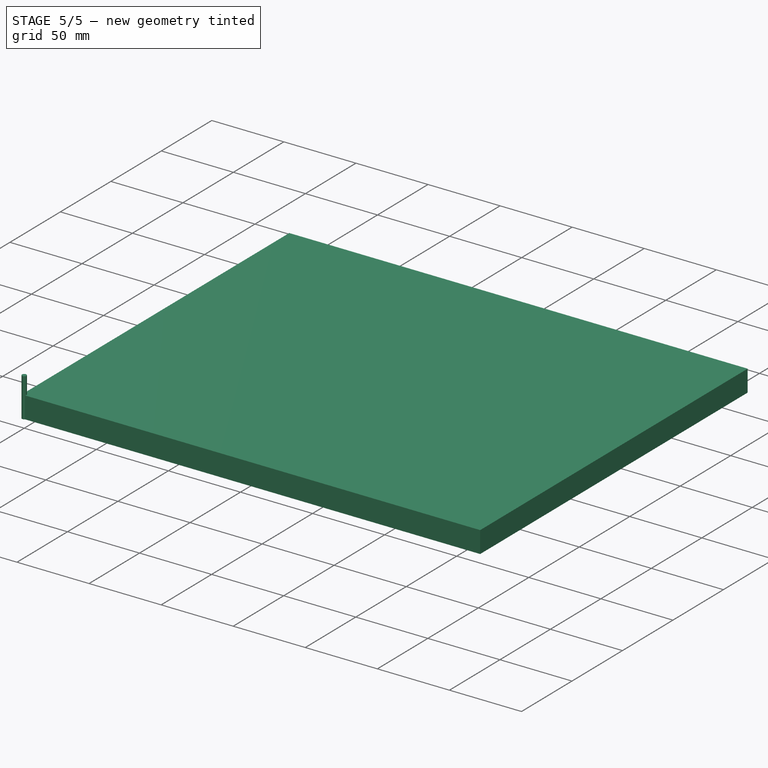
[diagram: stage 5 of 5 — iso view after this stage's code; geometry added in this stage tinted green]
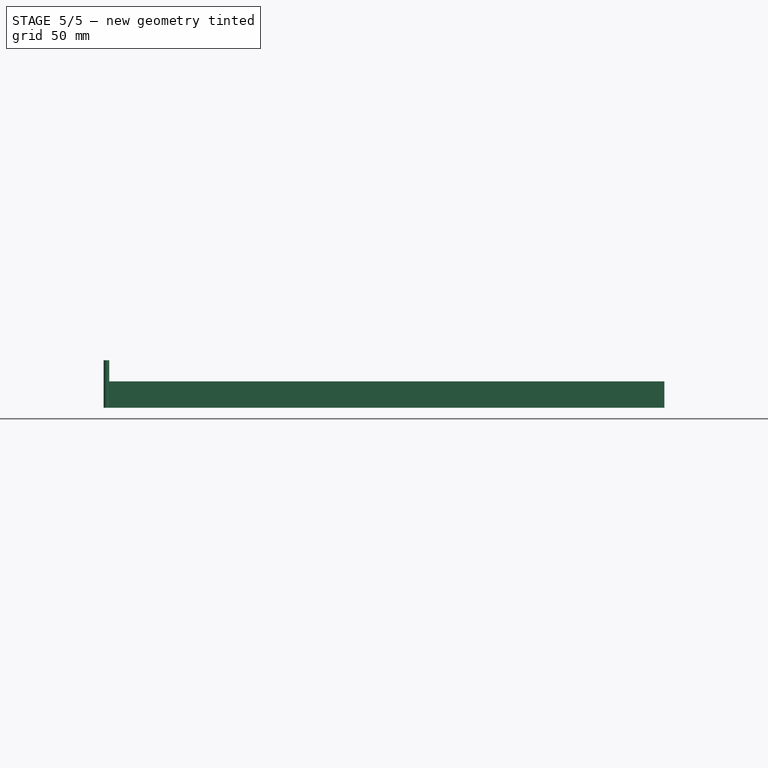
[diagram: stage 5 of 5 — front view after this stage's code; geometry added in this stage tinted green]
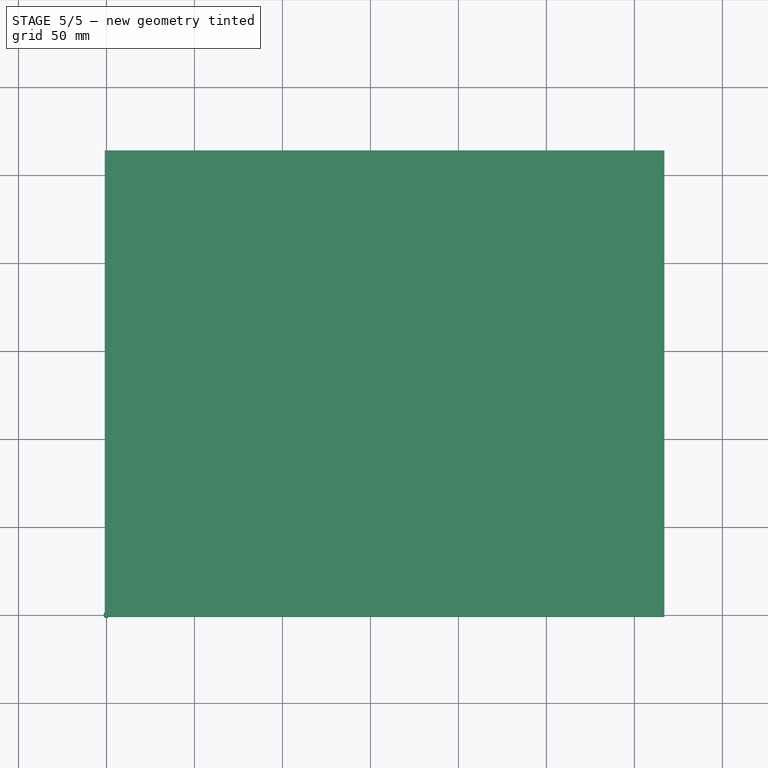
[diagram: stage 5 of 5 — top view after this stage's code; geometry added in this stage tinted green]
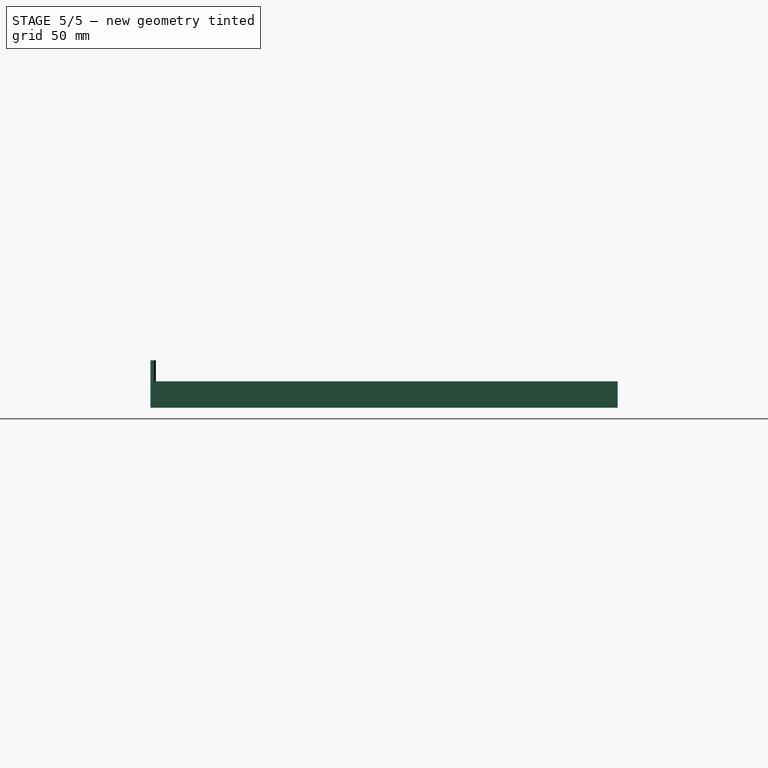
[diagram: stage 5 of 5 — right view after this stage's code; geometry added in this stage tinted green]
FEATURE [Path::FeaturePython] __8mm_Endmill001  label="0.8mm_Endmill002"  # Path/CAM operation (typed FeaturePython)
  HorizFeed = 3.33333
  HorizRapid = 0
  SpindleDir = 0
  SpindleSpeed = 2000
  Tool = -> ToolBit
  ToolNumber = 2
  VertFeed = 3.33333
  VertRapid = 0
  expr: HorizRapid = SetupSheet.HorizRapid
  expr: VertRapid = SetupSheet.VertRapid
FEATURE [Part::FeaturePython] ToolBit001  label="1.0mm_Endmill003"  # Path/CAM toolbit (typed FeaturePython)
  BitPropertyNames = Chipload | CuttingEdgeHeight | Diameter | Flutes | Length | Material | ShankDiameter | SpindleDirection
  BitShape = /private/var/folders/4z/cpn_82wx3qz0m4lfqxz9fps80000gn/T/AppTranslocation/C237E315-4526-4725-9325-06C9AD00EF50/d/FreeCAD.app/Contents/Resources/Mod/CAM/Tools/Shape/endmill.fcstd
  Chipload = 0
  CuttingEdgeHeight = 10
  Diameter = 1
  Flutes = 0
  Length = 27
  Material = 0
  ShankDiameter = 3.17
  ShapeName = endmill
  SpindleDirection = 0
FEATURE [Path::FeaturePython] __0mm_Endmill001  label="1.0mm_Endmill002"  # Path/CAM operation (typed FeaturePython)
  HorizFeed = 3.33333
  HorizRapid = 0
  SpindleDir = 0
  SpindleSpeed = 2000
  Tool = -> ToolBit001
  ToolNumber = 3
  VertFeed = 3.33333
  VertRapid = 0
  expr: HorizRapid = SetupSheet.HorizRapid
  expr: VertRapid = SetupSheet.VertRapid
FEATURE [Part::FeaturePython] ToolBit002  label="1.2mm_endmill003"  # Path/CAM toolbit (typed FeaturePython)
  BitPropertyNames = Chipload | CuttingEdgeHeight | Diameter | Flutes | Length | Material | ShankDiameter | SpindleDirection
  BitShape = /private/var/folders/4z/cpn_82wx3qz0m4lfqxz9fps80000gn/T/AppTranslocation/C237E315-4526-4725-9325-06C9AD00EF50/d/FreeCAD.app/Contents/Resources/Mod/CAM/Tools/Shape/endmill.fcstd
  Chipload = 0
  CuttingEdgeHeight = 10
  Diameter = 1.2
  Flutes = 0
  Length = 27
  Material = 0
  ShankDiameter = 3.13
  ShapeName = endmill
  SpindleDirection = 0
FEATURE [Path::FeaturePython] __2mm_endmill001  label="1.2mm_endmill002"  # Path/CAM operation (typed FeaturePython)
  HorizFeed = 3.33333
  HorizRapid = 0
  SpindleDir = 0
  SpindleSpeed = 2000
  Tool = -> ToolBit002
  ToolNumber = 4
  VertFeed = 3.33333
  VertRapid = 0
  expr: HorizRapid = SetupSheet.HorizRapid
  expr: VertRapid = SetupSheet.VertRapid
FEATURE [Part::FeaturePython] ToolBit003  label="1.4mm_Endmill003"  # Path/CAM toolbit (typed FeaturePython)
  BitPropertyNames = Chipload | CuttingEdgeHeight | Diameter | Flutes | Length | Material | ShankDiameter | SpindleDirection
  BitShape = /private/var/folders/4z/cpn_82wx3qz0m4lfqxz9fps80000gn/T/AppTranslocation/C237E315-4526-4725-9325-06C9AD00EF50/d/FreeCAD.app/Contents/Resources/Mod/CAM/Tools/Shape/endmill.fcstd
  Chipload = 0
  CuttingEdgeHeight = 10
  Diameter = 1.4
  Flutes = 0
  Length = 27
  Material = 0
  ShankDiameter = 3.17
  ShapeName = endmill
  SpindleDirection = 0
FEATURE [Path::FeaturePython] __4mm_Endmill001  label="1.4mm_Endmill002"  # Path/CAM operation (typed FeaturePython)
  HorizFeed = 3.33333
  HorizRapid = 0
  SpindleDir = 0
  SpindleSpeed = 2000
  Tool = -> ToolBit003
  ToolNumber = 5
  VertFeed = 3.33333
  VertRapid = 0
  expr: HorizRapid = SetupSheet.HorizRapid
  expr: VertRapid = SetupSheet.VertRapid
FEATURE [Part::FeaturePython] ToolBit004  label="1.8mm_Endmill"  # Path/CAM toolbit (typed FeaturePython)
  BitPropertyNames = Chipload | CuttingEdgeHeight | Diameter | Flutes | Length | Material | ShankDiameter | SpindleDirection
  BitShape = /private/var/folders/4z/cpn_82wx3qz0m4lfqxz9fps80000gn/T/AppTranslocation/C237E315-4526-4725-9325-06C9AD00EF50/d/FreeCAD.app/Contents/Resources/Mod/CAM/Tools/Shape/endmill.fcstd
  Chipload = 0
  CuttingEdgeHeight = 10
  Diameter = 1.8
  Flutes = 0
  Length = 27
  Material = 0
  ShankDiameter = 3.17
  ShapeName = endmill
  SpindleDirection = 0
FEATURE [Path::FeaturePython] __8mm_Endmill002  label="1.8mm_Endmill001"  # Path/CAM operation (typed FeaturePython)
  HorizFeed = 3.33333
  HorizRapid = 0
  SpindleDir = 0
  SpindleSpeed = 2000
  Tool = -> ToolBit004
  ToolNumber = 7
  VertFeed = 3.33333
  VertRapid = 0
  expr: HorizRapid = SetupSheet.HorizRapid
  expr: VertRapid = SetupSheet.VertRapid
FEATURE [Part::FeaturePython] ToolBit005  label="2.0mm_Endmill"  # Path/CAM toolbit (typed FeaturePython)
  BitPropertyNames = Chipload | CuttingEdgeHeight | Diameter | Flutes | Length | Material | ShankDiameter | SpindleDirection
  BitShape = /private/var/folders/4z/cpn_82wx3qz0m4lfqxz9fps80000gn/T/AppTranslocation/C237E315-4526-4725-9325-06C9AD00EF50/d/FreeCAD.app/Contents/Resources/Mod/CAM/Tools/Shape/endmill.fcstd
  Chipload = 0
  CuttingEdgeHeight = 10
  Diameter = 2
  Flutes = 0
  Length = 27
  Material = 0
  ShankDiameter = 3.17
  ShapeName = endmill
  SpindleDirection = 0
FEATURE [Path::FeaturePython] __0mm_Endmill002  label="2.0mm_Endmill001"  # Path/CAM operation (typed FeaturePython)
  HorizFeed = 3.33333
  HorizRapid = 0
  SpindleDir = 0
  SpindleSpeed = 2000
  Tool = -> ToolBit005
  ToolNumber = 8
  VertFeed = 3.33333
  VertRapid = 0
  expr: HorizRapid = SetupSheet.HorizRapid
  expr: VertRapid = SetupSheet.VertRapid
FEATURE [Part::FeaturePython] ToolBit006  label="2.2mm_Endmill"  # Path/CAM toolbit (typed FeaturePython)
  BitPropertyNames = Chipload | CuttingEdgeHeight | Diameter | Flutes | Length | Material | ShankDiameter | SpindleDirection
  BitShape = /private/var/folders/4z/cpn_82wx3qz0m4lfqxz9fps80000gn/T/AppTranslocation/C237E315-4526-4725-9325-06C9AD00EF50/d/FreeCAD.app/Contents/Resources/Mod/CAM/Tools/Shape/endmill.fcstd
  Chipload = 0
  CuttingEdgeHeight = 10
  Diameter = 2.2
  Flutes = 0
  Length = 27
  Material = 0
  ShankDiameter = 3.17
  ShapeName = endmill
  SpindleDirection = 0
FEATURE [Path::FeaturePython] __2mm_Endmill  label="2.2mm_Endmill001"  # Path/CAM operation (typed FeaturePython)
  HorizFeed = 3.33333
  HorizRapid = 0
  SpindleDir = 0
  SpindleSpeed = 2000
  Tool = -> ToolBit006
  ToolNumber = 9
  VertFeed = 3.33333
  VertRapid = 0
  expr: HorizRapid = SetupSheet.HorizRapid
  expr: VertRapid = SetupSheet.VertRapid
FEATURE [Part::FeaturePython] ToolBit007  label="2.4mm_Endmill"  # Path/CAM toolbit (typed FeaturePython)
  BitPropertyNames = Chipload | CuttingEdgeHeight | Diameter | Flutes | Length | Material | ShankDiameter | SpindleDirection
  BitShape = /private/var/folders/4z/cpn_82wx3qz0m4lfqxz9fps80000gn/T/AppTranslocation/C237E315-4526-4725-9325-06C9AD00EF50/d/FreeCAD.app/Contents/Resources/Mod/CAM/Tools/Shape/endmill.fcstd
  Chipload = 0
  CuttingEdgeHeight = 10
  Diameter = 2.4
  Flutes = 0
  Length = 27
  Material = 0
  ShankDiameter = 3.17
  ShapeName = endmill
  SpindleDirection = 0
FEATURE [Path::FeaturePython] __4mm_Endmill002  label="2.4mm_Endmill001"  # Path/CAM operation (typed FeaturePython)
  HorizFeed = 3.33333
  HorizRapid = 0
  SpindleDir = 0
  SpindleSpeed = 2000
  Tool = -> ToolBit007
  ToolNumber = 10
  VertFeed = 3.33333
  VertRapid = 0
  expr: HorizRapid = SetupSheet.HorizRapid
  expr: VertRapid = SetupSheet.VertRapid
FEATURE [Part::FeaturePython] ToolBit008  label="2.6mm_Endmill"  # Path/CAM toolbit (typed FeaturePython)
  BitPropertyNames = Chipload | CuttingEdgeHeight | Diameter | Flutes | Length | Material | ShankDiameter | SpindleDirection
  BitShape = /private/var/folders/4z/cpn_82wx3qz0m4lfqxz9fps80000gn/T/AppTranslocation/C237E315-4526-4725-9325-06C9AD00EF50/d/FreeCAD.app/Contents/Resources/Mod/CAM/Tools/Shape/endmill.fcstd
  Chipload = 0
  CuttingEdgeHeight = 10
  Diameter = 2.6
  Flutes = 0
  Length = 27
  Material = 0
  ShankDiameter = 3.17
  ShapeName = endmill
  SpindleDirection = 0
FEATURE [Path::FeaturePython] __6mm_Endmill  label="2.6mm_Endmill001"  # Path/CAM operation (typed FeaturePython)
  HorizFeed = 3.33333
  HorizRapid = 0
  SpindleDir = 0
  SpindleSpeed = 2000
  Tool = -> ToolBit008
  ToolNumber = 11
  VertFeed = 3.33333
  VertRapid = 0
  expr: HorizRapid = SetupSheet.HorizRapid
  expr: VertRapid = SetupSheet.VertRapid
FEATURE [Part::FeaturePython] ToolBit009  label="2.8mm_Endmill"  # Path/CAM toolbit (typed FeaturePython)
  BitPropertyNames = Chipload | CuttingEdgeHeight | Diameter | Flutes | Length | Material | ShankDiameter | SpindleDirection
  BitShape = /private/var/folders/4z/cpn_82wx3qz0m4lfqxz9fps80000gn/T/AppTranslocation/C237E315-4526-4725-9325-06C9AD00EF50/d/FreeCAD.app/Contents/Resources/Mod/CAM/Tools/Shape/endmill.fcstd
  Chipload = 0
  CuttingEdgeHeight = 10
  Diameter = 2.8
  Flutes = 0
  Length = 27
  Material = 0
  ShankDiameter = 3.17
  ShapeName = endmill
  SpindleDirection = 0
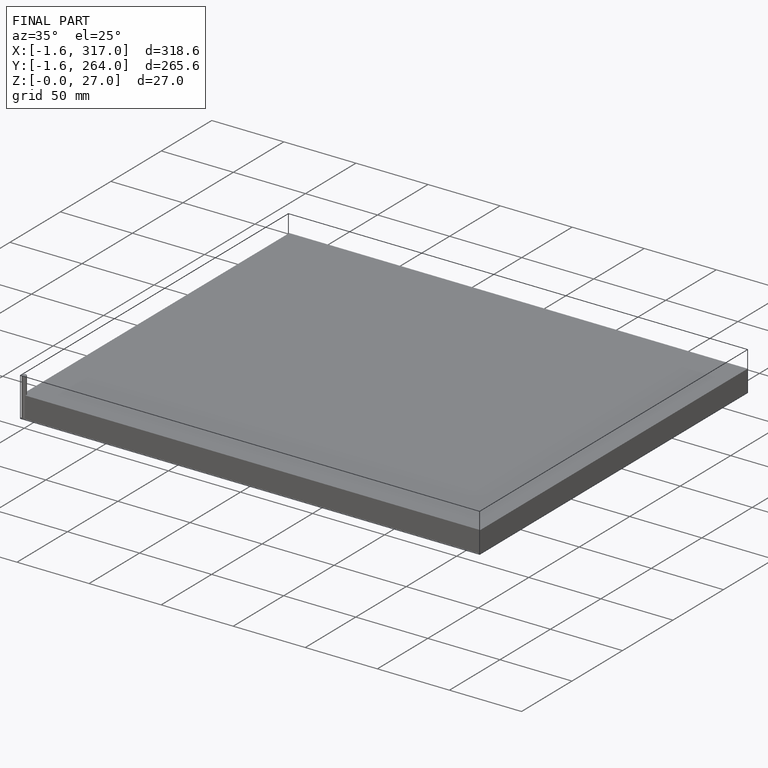
[diagram: finished part — iso view with bounding-box wireframe]
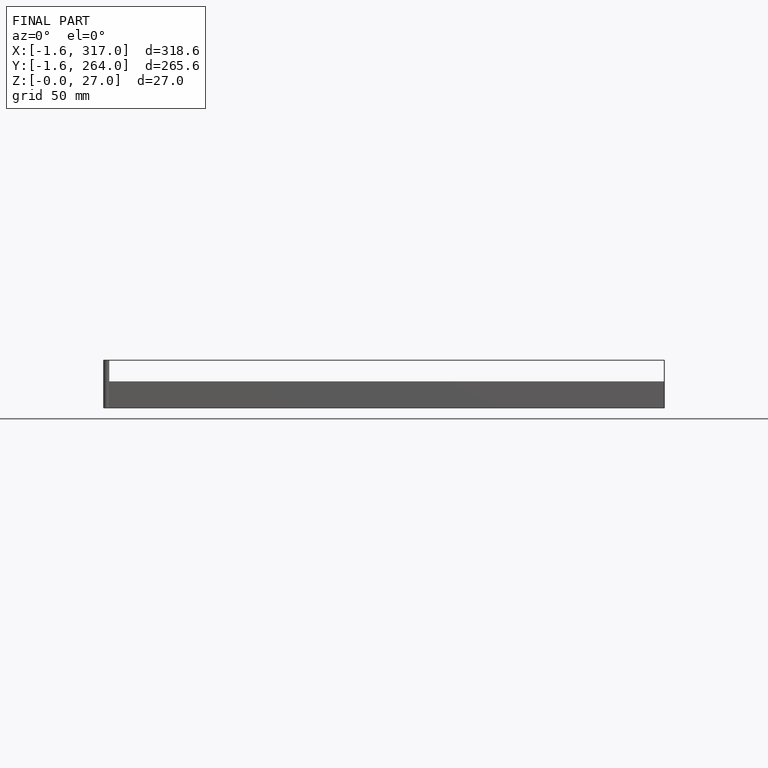
[diagram: finished part — front view with bounding-box wireframe]
